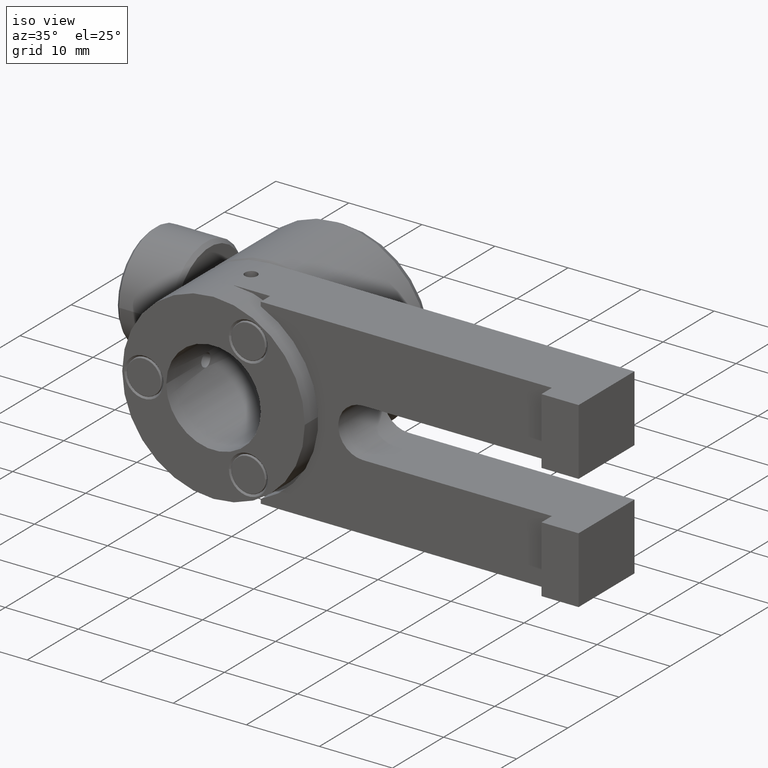
[diagram: clean part render]
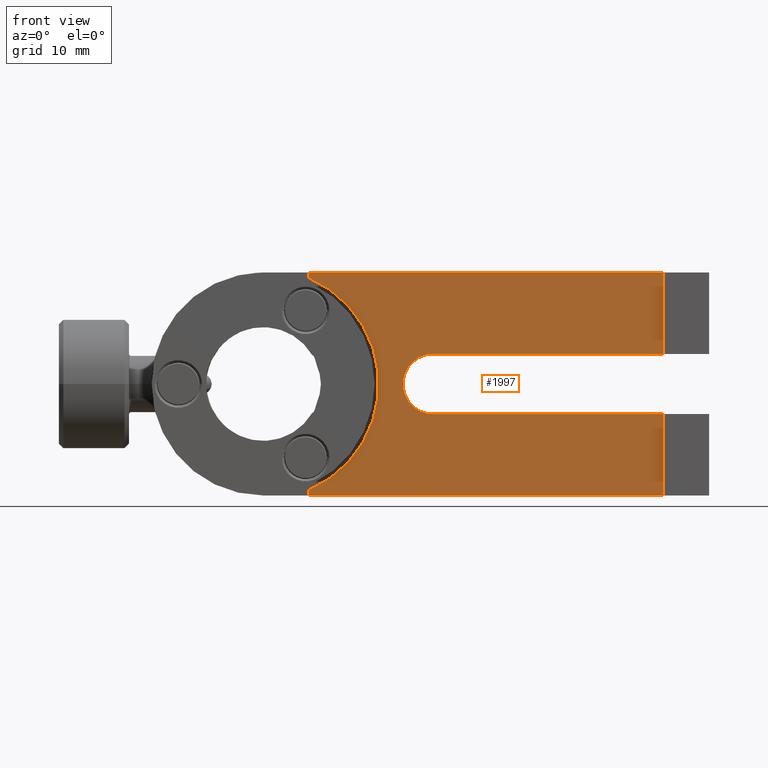
[diagram: tour spotlight — one face highlighted and labeled with its STEP entity id]
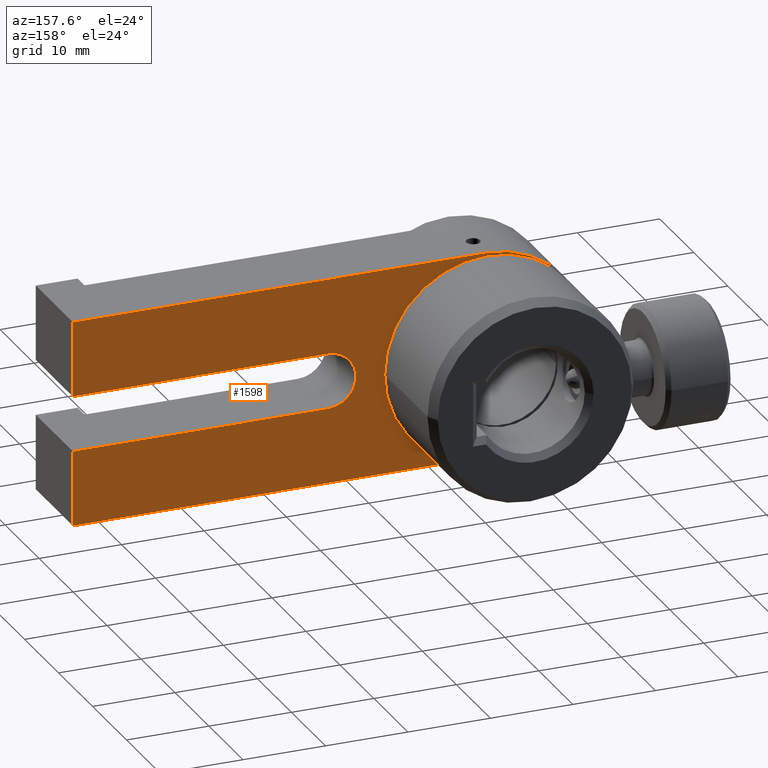
[diagram: tour spotlight — one face highlighted and labeled with its STEP entity id]
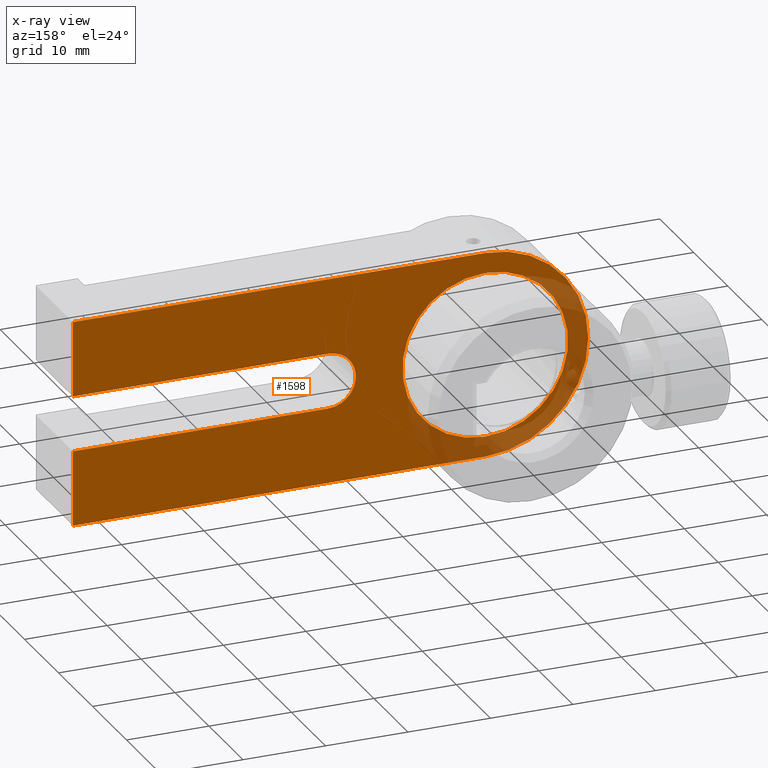
[diagram: x-ray of the same camera — body ghosted, this tour face saturated]
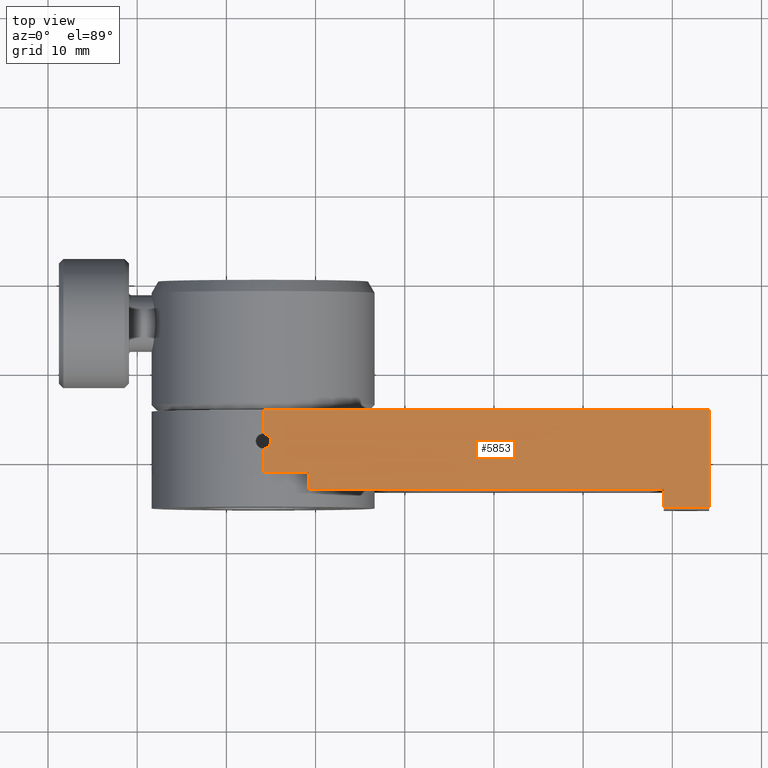
[diagram: tour spotlight — one face highlighted and labeled with its STEP entity id]
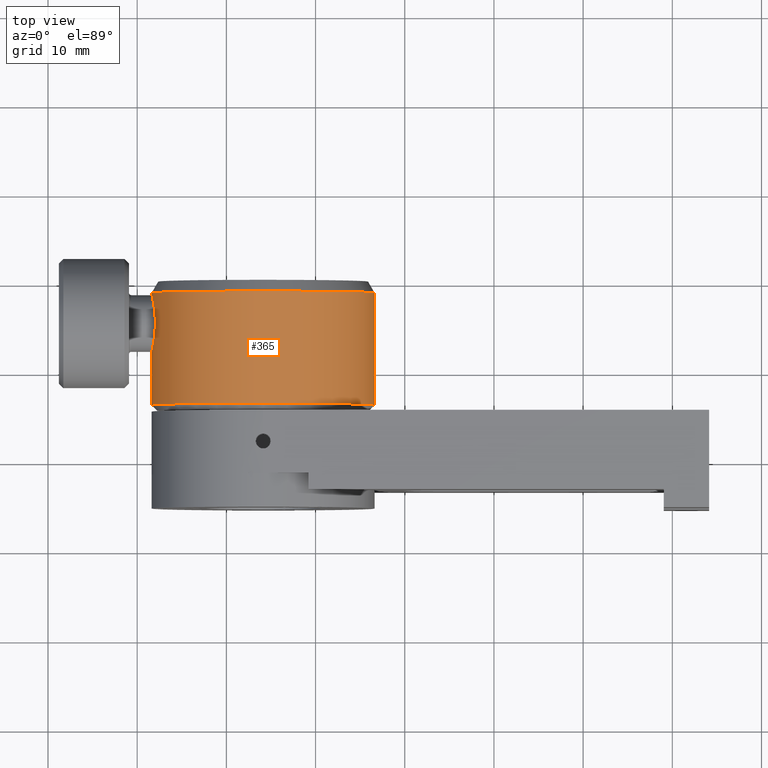
[diagram: tour spotlight — one face highlighted and labeled with its STEP entity id]
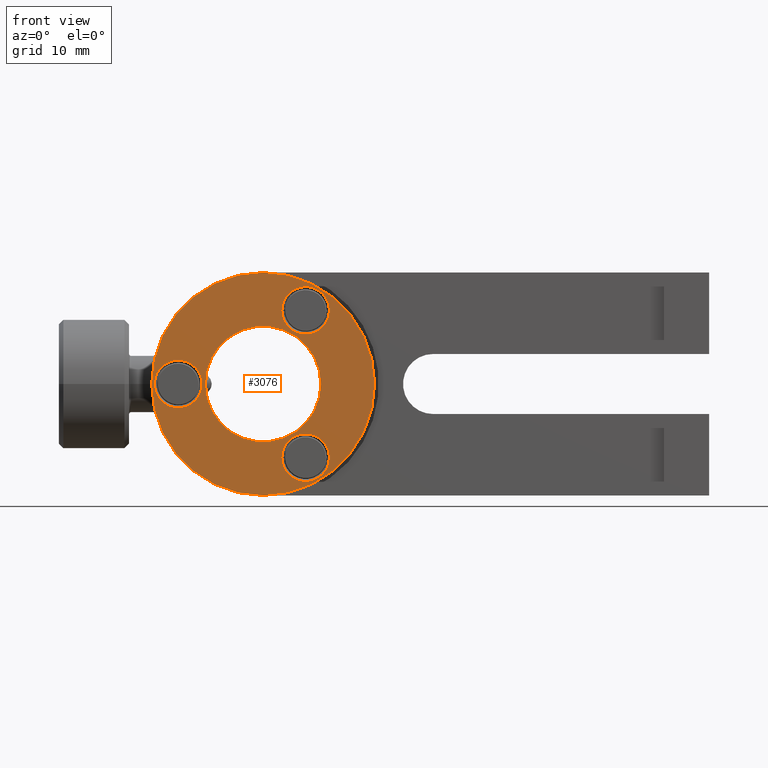
[diagram: tour spotlight — one face highlighted and labeled with its STEP entity id]
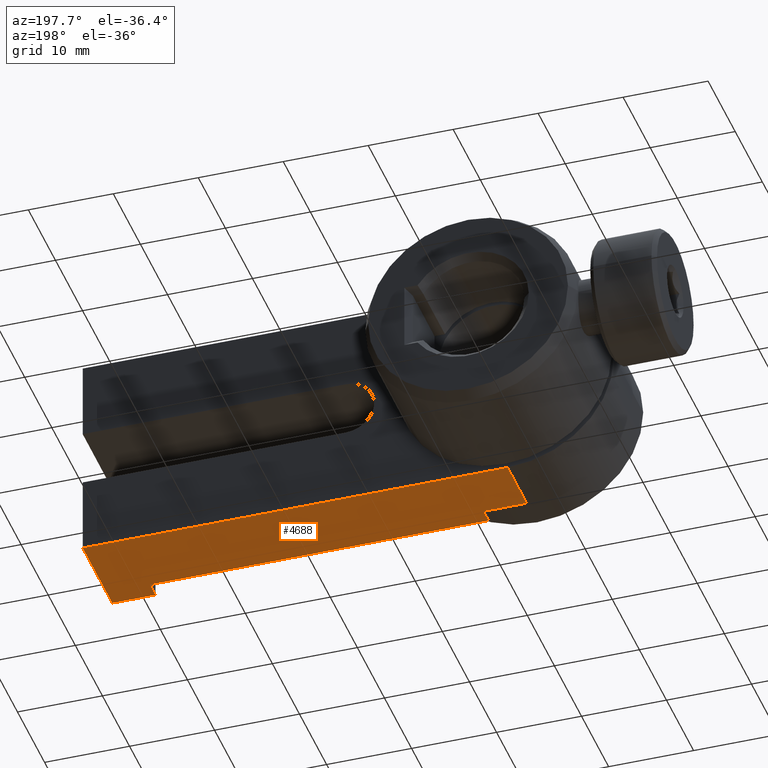
[diagram: tour spotlight — one face highlighted and labeled with its STEP entity id]
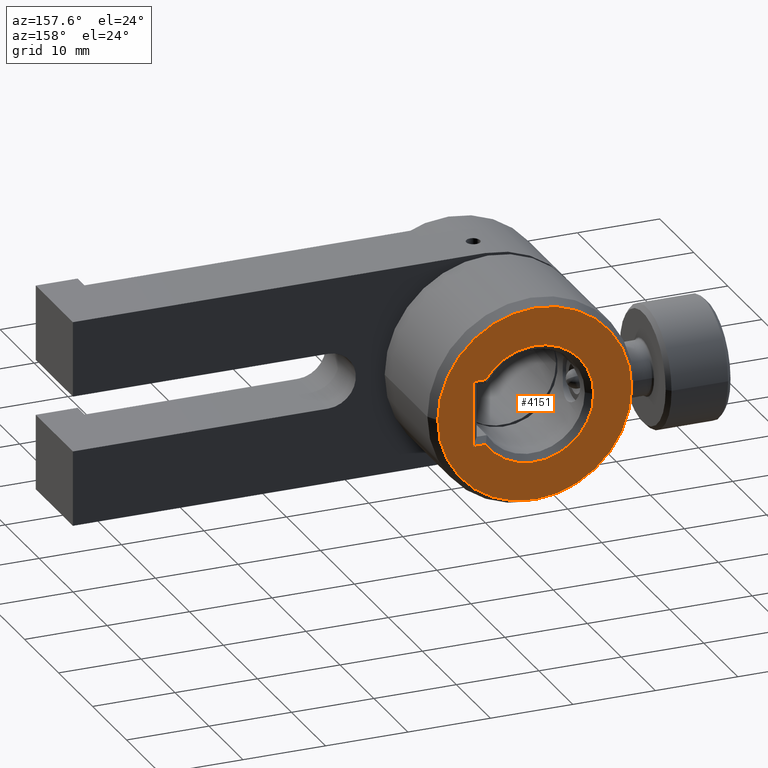
[diagram: tour spotlight — one face highlighted and labeled with its STEP entity id]
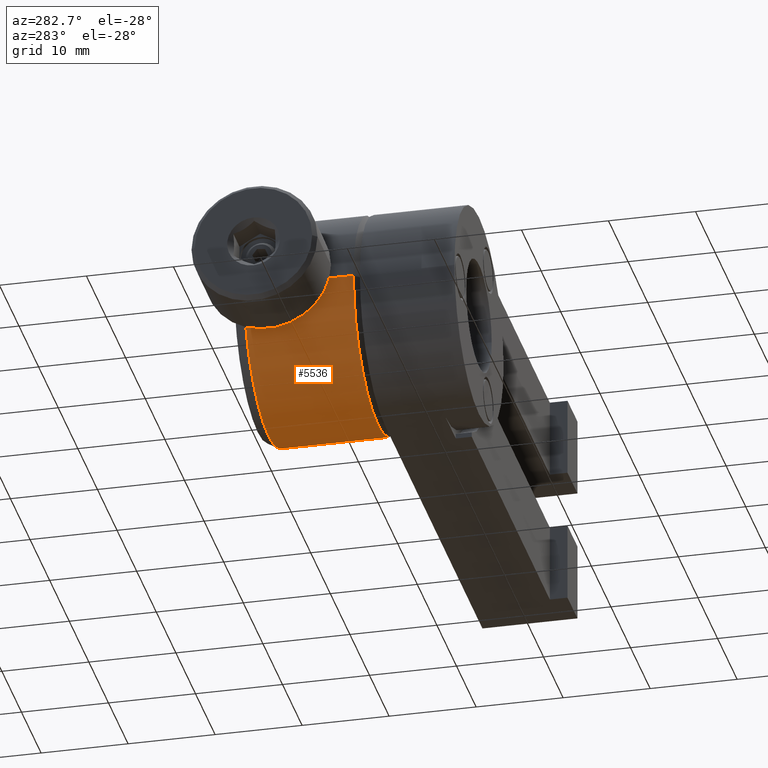
[diagram: tour spotlight — one face highlighted and labeled with its STEP entity id]
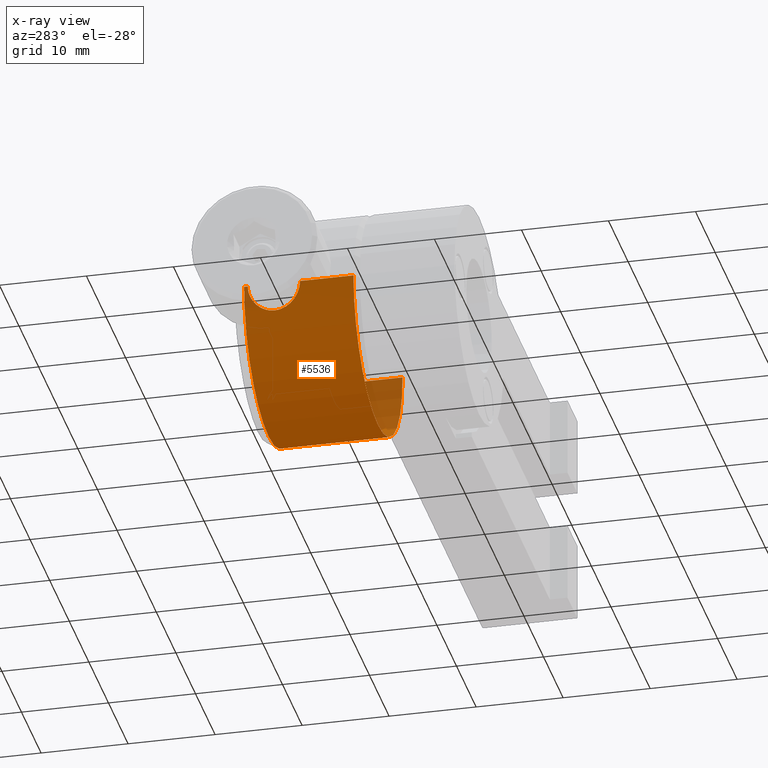
[diagram: x-ray of the same camera — body ghosted, this tour face saturated]
A machine part: a face-by-face anatomy tour. The part has 205 B-rep faces; the first image is the clean iso view, then the 8 largest visible faces are spotlighted one at a time (largest first), each with its STEP entity span.

Face 1 — front view, entity #1997. In plain terms, the highlighted planar face has unit normal (0, 1, -0).
Definition (entity closure, byte-faithful):
#308 = EDGE_LOOP ( 'NONE', ( #2361, #5906, #4393, #2369, #4480, #1803, #4075, #2357, #5941, #1552 ) ) ;
#401 = EDGE_CURVE ( 'NONE', #2819, #846, #3826, .T. ) ;
#426 = CARTESIAN_POINT ( 'NONE',  ( 49.04306664389137900, -3.191865212235105400, 8.999471541716452500E-015 ) ) ;
#534 = CARTESIAN_POINT ( 'NONE',  ( -29.62103515794081700, -3.191865212235105400, 12.49679999999999900 ) ) ;
#674 = VERTEX_POINT ( 'NONE', #1391 ) ;
#739 = LINE ( 'NONE', #2308, #3029 ) ;
#770 = CARTESIAN_POINT ( 'NONE',  ( 23.17306664389138500, -3.191865212235105400, 0.0000000000000000000 ) ) ;
#846 = VERTEX_POINT ( 'NONE', #2916 ) ;
#868 = VERTEX_POINT ( 'NONE', #5783 ) ;
#1128 = DIRECTION ( 'NONE',  ( 1.000000000000000000, 0.0000000000000000000, 0.0000000000000000000 ) ) ;
#1360 = VECTOR ( 'NONE', #3296, 1000.000000000000000 ) ;
#1391 = CARTESIAN_POINT ( 'NONE',  ( 49.04306664389137900, -3.191865212235105400, -12.49679999999999900 ) ) ;
#1439 = VECTOR ( 'NONE', #6614, 1000.000000000000000 ) ;
#1552 = ORIENTED_EDGE ( 'NONE', *, *, #4498, .F. ) ;
#1666 = PLANE ( 'NONE',  #2677 ) ;
#1708 = DIRECTION ( 'NONE',  ( 0.0000000000000000000, 1.000000000000000000, -0.0000000000000000000 ) ) ;
#1780 = DIRECTION ( 'NONE',  ( 0.0000000000000000000, 0.0000000000000000000, 1.000000000000000000 ) ) ;
#1803 = ORIENTED_EDGE ( 'NONE', *, *, #5151, .T. ) ;
#1916 = VERTEX_POINT ( 'NONE', #2667 ) ;
#1997 = ADVANCED_FACE ( 'NONE', ( #3980 ), #1666, .F. ) ;
#2308 = CARTESIAN_POINT ( 'NONE',  ( 9.203066643891327600, -3.191865212235105400, -6.262721656412349900E-014 ) ) ;
#2357 = ORIENTED_EDGE ( 'NONE', *, *, #5096, .T. ) ;
#2361 = ORIENTED_EDGE ( 'NONE', *, *, #401, .T. ) ;
#2364 = LINE ( 'NONE', #534, #3168 ) ;
#2369 = ORIENTED_EDGE ( 'NONE', *, *, #5521, .T. ) ;
#2434 = DIRECTION ( 'NONE',  ( 0.0000000000000000000, 1.000000000000000000, -0.0000000000000000000 ) ) ;
#2490 = EDGE_CURVE ( 'NONE', #1916, #868, #4742, .T. ) ;
#2600 = CARTESIAN_POINT ( 'NONE',  ( -29.62103515794081700, -3.191865212235105400, -3.365499999999993700 ) ) ;
#2667 = CARTESIAN_POINT ( 'NONE',  ( 49.04306664389137900, -3.191865212235105400, -3.365500000000003500 ) ) ;
#2675 = LINE ( 'NONE', #6891, #5526 ) ;
#2677 = AXIS2_PLACEMENT_3D ( 'NONE', #4492, #1708, #5582 ) ;
#2819 = VERTEX_POINT ( 'NONE', #3943 ) ;
#2916 = CARTESIAN_POINT ( 'NONE',  ( 9.203066643891375500, -3.191865212235105400, -11.91636337143174300 ) ) ;
#2971 = AXIS2_PLACEMENT_3D ( 'NONE', #770, #2434, #3555 ) ;
#3029 = VECTOR ( 'NONE', #6858, 1000.000000000000000 ) ;
#3168 = VECTOR ( 'NONE', #1128, 1000.000000000000000 ) ;
#3178 = VECTOR ( 'NONE', #6495, 1000.000000000000000 ) ;
#3234 = VECTOR ( 'NONE', #3754, 1000.000000000000000 ) ;
#3245 = CARTESIAN_POINT ( 'NONE',  ( 4.123066643891380800, -3.191865212235105400, 0.0000000000000000000 ) ) ;
#3282 = CARTESIAN_POINT ( 'NONE',  ( 9.203066643891416400, -3.191865212235105400, -4.175147770941540900E-014 ) ) ;
#3296 = DIRECTION ( 'NONE',  ( 0.0000000000000000000, 0.0000000000000000000, 1.000000000000000000 ) ) ;
#3357 = CARTESIAN_POINT ( 'NONE',  ( 9.203066643891382600, -3.191865212235105400, -12.49679999999999900 ) ) ;
#3555 = DIRECTION ( 'NONE',  ( 0.0000000000000000000, 0.0000000000000000000, 1.000000000000000000 ) ) ;
#3635 = VERTEX_POINT ( 'NONE', #3357 ) ;
#3754 = DIRECTION ( 'NONE',  ( -1.000000000000000000, 0.0000000000000000000, 1.261107535039681900E-016 ) ) ;
#3801 = LINE ( 'NONE', #5469, #3178 ) ;
#3826 = CIRCLE ( 'NONE', #5709, 12.95400000000000100 ) ;
#3943 = CARTESIAN_POINT ( 'NONE',  ( 9.203066643891380800, -3.191865212235105400, 11.91636337143173900 ) ) ;
#3980 = FACE_OUTER_BOUND ( 'NONE', #308, .T. ) ;
#4013 = VERTEX_POINT ( 'NONE', #6158 ) ;
#4075 = ORIENTED_EDGE ( 'NONE', *, *, #6413, .F. ) ;
#4175 = CIRCLE ( 'NONE', #2971, 3.365500000000003000 ) ;
#4383 = VERTEX_POINT ( 'NONE', #6637 ) ;
#4393 = ORIENTED_EDGE ( 'NONE', *, *, #4456, .T. ) ;
#4456 = EDGE_CURVE ( 'NONE', #3635, #674, #6162, .T. ) ;
#4480 = ORIENTED_EDGE ( 'NONE', *, *, #2490, .T. ) ;
#4492 = CARTESIAN_POINT ( 'NONE',  ( 23.17306664389138500, -3.191865212235105400, 0.0000000000000000000 ) ) ;
#4498 = EDGE_CURVE ( 'NONE', #2819, #4013, #6774, .T. ) ;
#4625 = VECTOR ( 'NONE', #6037, 1000.000000000000000 ) ;
#4742 = LINE ( 'NONE', #2600, #3234 ) ;
#5096 = EDGE_CURVE ( 'NONE', #4383, #5173, #2675, .T. ) ;
#5151 = EDGE_CURVE ( 'NONE', #868, #5581, #4175, .T. ) ;
#5173 = VERTEX_POINT ( 'NONE', #5680 ) ;
#5464 = DIRECTION ( 'NONE',  ( 0.0000000000000000000, 1.000000000000000000, -0.0000000000000000000 ) ) ;
#5469 = CARTESIAN_POINT ( 'NONE',  ( -29.62103515794081700, -3.191865212235105400, 3.365500000000010200 ) ) ;
#5509 = CARTESIAN_POINT ( 'NONE',  ( -29.62103515794081700, -3.191865212235105400, -12.49679999999999900 ) ) ;
#5521 = EDGE_CURVE ( 'NONE', #674, #1916, #6070, .T. ) ;
#5526 = VECTOR ( 'NONE', #1780, 1000.000000000000000 ) ;
#5581 = VERTEX_POINT ( 'NONE', #6185 ) ;
#5582 = DIRECTION ( 'NONE',  ( 0.0000000000000000000, 0.0000000000000000000, 1.000000000000000000 ) ) ;
#5680 = CARTESIAN_POINT ( 'NONE',  ( 49.04306664389137900, -3.191865212235105400, 12.49679999999999900 ) ) ;
#5709 = AXIS2_PLACEMENT_3D ( 'NONE', #3245, #5464, #6623 ) ;
#5783 = CARTESIAN_POINT ( 'NONE',  ( 23.17306664389137800, -3.191865212235105400, -3.365500000000003000 ) ) ;
#5837 = EDGE_CURVE ( 'NONE', #3635, #846, #739, .T. ) ;
#5906 = ORIENTED_EDGE ( 'NONE', *, *, #5837, .F. ) ;
#5941 = ORIENTED_EDGE ( 'NONE', *, *, #6815, .F. ) ;
#6037 = DIRECTION ( 'NONE',  ( 1.000000000000000000, 0.0000000000000000000, 0.0000000000000000000 ) ) ;
#6070 = LINE ( 'NONE', #426, #1360 ) ;
#6158 = CARTESIAN_POINT ( 'NONE',  ( 9.203066643891379100, -3.191865212235105400, 12.49679999999999900 ) ) ;
#6162 = LINE ( 'NONE', #5509, #4625 ) ;
#6185 = CARTESIAN_POINT ( 'NONE',  ( 23.17306664389137800, -3.191865212235105400, 3.365500000000006200 ) ) ;
#6413 = EDGE_CURVE ( 'NONE', #4383, #5581, #3801, .T. ) ;
#6495 = DIRECTION ( 'NONE',  ( -1.000000000000000000, 0.0000000000000000000, 7.006152972442677000E-017 ) ) ;
#6614 = DIRECTION ( 'NONE',  ( -2.988652663522942800E-015, 0.0000000000000000000, 1.000000000000000000 ) ) ;
#6623 = DIRECTION ( 'NONE',  ( 0.0000000000000000000, 0.0000000000000000000, 1.000000000000000000 ) ) ;
#6637 = CARTESIAN_POINT ( 'NONE',  ( 49.04306664389137900, -3.191865212235105400, 3.365500000000004400 ) ) ;
#6774 = LINE ( 'NONE', #3282, #1439 ) ;
#6815 = EDGE_CURVE ( 'NONE', #4013, #5173, #2364, .T. ) ;
#6858 = DIRECTION ( 'NONE',  ( -4.482978995284413100E-015, 0.0000000000000000000, 1.000000000000000000 ) ) ;
#6891 = CARTESIAN_POINT ( 'NONE',  ( 49.04306664389137900, -3.191865212235105400, 8.999471541716452500E-015 ) ) ;

Face 2 — auxiliary view, entity #1598. An x-ray twin of the same camera follows (body ghosted, this face saturated) — the face is partly hidden behind the body. In plain terms, the highlighted planar face has unit normal (0, 1, -0).
Definition (entity closure, byte-faithful):
#18 = EDGE_CURVE ( 'NONE', #4593, #6351, #2753, .T. ) ;
#68 = CARTESIAN_POINT ( 'NONE',  ( 54.12306664389138400, 5.698134787764893800, 12.49679999999999900 ) ) ;
#83 = ORIENTED_EDGE ( 'NONE', *, *, #6156, .F. ) ;
#127 = CARTESIAN_POINT ( 'NONE',  ( 23.17306664389137800, 5.698134787764893800, -3.365499999999999900 ) ) ;
#130 = EDGE_CURVE ( 'NONE', #1235, #1106, #891, .T. ) ;
#266 = FACE_OUTER_BOUND ( 'NONE', #5461, .T. ) ;
#394 = DIRECTION ( 'NONE',  ( 0.0000000000000000000, 0.0000000000000000000, 1.000000000000000000 ) ) ;
#463 = VERTEX_POINT ( 'NONE', #5434 ) ;
#682 = DIRECTION ( 'NONE',  ( -1.000000000000000000, 0.0000000000000000000, 1.261107535039681900E-016 ) ) ;
#820 = LINE ( 'NONE', #5205, #3217 ) ;
#826 = CIRCLE ( 'NONE', #3835, 3.365500000000003000 ) ;
#891 = CIRCLE ( 'NONE', #6564, 12.49679999999999900 ) ;
#993 = CARTESIAN_POINT ( 'NONE',  ( 4.123066643891380800, 5.698134787764893800, 0.0000000000000000000 ) ) ;
#1106 = VERTEX_POINT ( 'NONE', #6396 ) ;
#1235 = VERTEX_POINT ( 'NONE', #3770 ) ;
#1470 = CARTESIAN_POINT ( 'NONE',  ( -29.62103515794081700, 5.698134787764893800, -12.49679999999999900 ) ) ;
#1545 = AXIS2_PLACEMENT_3D ( 'NONE', #5198, #3486, #6862 ) ;
#1558 = DIRECTION ( 'NONE',  ( 0.0000000000000000000, 1.000000000000000000, -0.0000000000000000000 ) ) ;
#1598 = ADVANCED_FACE ( 'NONE', ( #266, #1610 ), #2908, .T. ) ;
#1610 = FACE_BOUND ( 'NONE', #5212, .T. ) ;
#1625 = VECTOR ( 'NONE', #7126, 1000.000000000000000 ) ;
#1751 = ORIENTED_EDGE ( 'NONE', *, *, #3546, .T. ) ;
#2036 = CARTESIAN_POINT ( 'NONE',  ( 54.12306664389138400, 5.698134787764893800, 8.999471541716452500E-015 ) ) ;
#2043 = ORIENTED_EDGE ( 'NONE', *, *, #4743, .T. ) ;
#2113 = DIRECTION ( 'NONE',  ( 0.0000000000000000000, 1.000000000000000000, -0.0000000000000000000 ) ) ;
#2273 = ORIENTED_EDGE ( 'NONE', *, *, #4303, .F. ) ;
#2478 = CARTESIAN_POINT ( 'NONE',  ( 4.123066643891380800, 5.698134787764893800, -10.04570000000000200 ) ) ;
#2634 = CIRCLE ( 'NONE', #2893, 10.04570000000000200 ) ;
#2730 = VERTEX_POINT ( 'NONE', #4877 ) ;
#2737 = CARTESIAN_POINT ( 'NONE',  ( 4.123066643891380800, 5.698134787764893800, 0.0000000000000000000 ) ) ;
#2753 = CIRCLE ( 'NONE', #3648, 10.04570000000000200 ) ;
#2893 = AXIS2_PLACEMENT_3D ( 'NONE', #993, #1558, #5520 ) ;
#2908 = PLANE ( 'NONE',  #1545 ) ;
#3044 = ORIENTED_EDGE ( 'NONE', *, *, #3477, .T. ) ;
#3081 = VERTEX_POINT ( 'NONE', #127 ) ;
#3213 = DIRECTION ( 'NONE',  ( 0.0000000000000000000, 0.0000000000000000000, 1.000000000000000000 ) ) ;
#3217 = VECTOR ( 'NONE', #682, 1000.000000000000000 ) ;
#3242 = DIRECTION ( 'NONE',  ( 0.0000000000000000000, 1.000000000000000000, -0.0000000000000000000 ) ) ;
#3257 = DIRECTION ( 'NONE',  ( 0.0000000000000000000, 0.0000000000000000000, -1.000000000000000000 ) ) ;
#3391 = ORIENTED_EDGE ( 'NONE', *, *, #7251, .F. ) ;
#3477 = EDGE_CURVE ( 'NONE', #1106, #6657, #6694, .T. ) ;
#3486 = DIRECTION ( 'NONE',  ( 0.0000000000000000000, 1.000000000000000000, -0.0000000000000000000 ) ) ;
#3546 = EDGE_CURVE ( 'NONE', #4289, #4976, #5164, .T. ) ;
#3641 = VECTOR ( 'NONE', #4811, 1000.000000000000000 ) ;
#3648 = AXIS2_PLACEMENT_3D ( 'NONE', #4549, #3242, #6676 ) ;
#3689 = CARTESIAN_POINT ( 'NONE',  ( 54.12306664389138400, 5.698134787764893800, 8.999471541716452500E-015 ) ) ;
#3770 = CARTESIAN_POINT ( 'NONE',  ( 4.123066643891380800, 5.698134787764893800, -12.49679999999999900 ) ) ;
#3835 = AXIS2_PLACEMENT_3D ( 'NONE', #5009, #7165, #3213 ) ;
#4082 = LINE ( 'NONE', #1470, #3641 ) ;
#4165 = LINE ( 'NONE', #3689, #5082 ) ;
#4289 = VERTEX_POINT ( 'NONE', #6554 ) ;
#4303 = EDGE_CURVE ( 'NONE', #1235, #463, #4082, .T. ) ;
#4320 = VECTOR ( 'NONE', #394, 1000.000000000000000 ) ;
#4549 = CARTESIAN_POINT ( 'NONE',  ( 4.123066643891380800, 5.698134787764893800, 0.0000000000000000000 ) ) ;
#4593 = VERTEX_POINT ( 'NONE', #5404 ) ;
#4743 = EDGE_CURVE ( 'NONE', #6657, #4289, #4165, .T. ) ;
#4811 = DIRECTION ( 'NONE',  ( 1.000000000000000000, -0.0000000000000000000, 0.0000000000000000000 ) ) ;
#4877 = CARTESIAN_POINT ( 'NONE',  ( 54.12306664389138400, 5.698134787764893800, -3.365500000000003900 ) ) ;
#4899 = ORIENTED_EDGE ( 'NONE', *, *, #130, .T. ) ;
#4940 = CARTESIAN_POINT ( 'NONE',  ( -29.62103515794081700, 5.698134787764893800, 12.49679999999999900 ) ) ;
#4976 = VERTEX_POINT ( 'NONE', #6195 ) ;
#5009 = CARTESIAN_POINT ( 'NONE',  ( 23.17306664389138500, 5.698134787764893800, 0.0000000000000000000 ) ) ;
#5082 = VECTOR ( 'NONE', #3257, 1000.000000000000000 ) ;
#5086 = ORIENTED_EDGE ( 'NONE', *, *, #7143, .F. ) ;
#5101 = ORIENTED_EDGE ( 'NONE', *, *, #5420, .F. ) ;
#5164 = LINE ( 'NONE', #7158, #1625 ) ;
#5198 = CARTESIAN_POINT ( 'NONE',  ( -29.62103515794081700, 5.698134787764893800, 8.999471541716452500E-015 ) ) ;
#5205 = CARTESIAN_POINT ( 'NONE',  ( -29.62103515794081700, 5.698134787764893800, -3.365499999999993700 ) ) ;
#5212 = EDGE_LOOP ( 'NONE', ( #3391, #6867 ) ) ;
#5404 = CARTESIAN_POINT ( 'NONE',  ( 4.123066643891381700, 5.698134787764893800, 10.04570000000000200 ) ) ;
#5420 = EDGE_CURVE ( 'NONE', #3081, #4976, #826, .T. ) ;
#5434 = CARTESIAN_POINT ( 'NONE',  ( 54.12306664389138400, 5.698134787764893800, -12.49679999999999900 ) ) ;
#5461 = EDGE_LOOP ( 'NONE', ( #3044, #2043, #1751, #5101, #83, #5086, #2273, #4899 ) ) ;
#5512 = DIRECTION ( 'NONE',  ( 1.000000000000000000, -0.0000000000000000000, 0.0000000000000000000 ) ) ;
#5520 = DIRECTION ( 'NONE',  ( 0.0000000000000000000, 0.0000000000000000000, 1.000000000000000000 ) ) ;
#5666 = LINE ( 'NONE', #2036, #4320 ) ;
#6156 = EDGE_CURVE ( 'NONE', #2730, #3081, #820, .T. ) ;
#6161 = VECTOR ( 'NONE', #5512, 1000.000000000000000 ) ;
#6195 = CARTESIAN_POINT ( 'NONE',  ( 23.17306664389137800, 5.698134787764893800, 3.365500000000006200 ) ) ;
#6351 = VERTEX_POINT ( 'NONE', #2478 ) ;
#6396 = CARTESIAN_POINT ( 'NONE',  ( 4.123066643891380800, 5.698134787764893800, 12.49679999999999900 ) ) ;
#6554 = CARTESIAN_POINT ( 'NONE',  ( 54.12306664389138400, 5.698134787764893800, 3.365500000000003900 ) ) ;
#6564 = AXIS2_PLACEMENT_3D ( 'NONE', #2737, #2113, #6729 ) ;
#6657 = VERTEX_POINT ( 'NONE', #68 ) ;
#6676 = DIRECTION ( 'NONE',  ( 0.0000000000000000000, 0.0000000000000000000, 1.000000000000000000 ) ) ;
#6694 = LINE ( 'NONE', #4940, #6161 ) ;
#6729 = DIRECTION ( 'NONE',  ( 0.0000000000000000000, 0.0000000000000000000, 1.000000000000000000 ) ) ;
#6862 = DIRECTION ( 'NONE',  ( 0.0000000000000000000, 0.0000000000000000000, 1.000000000000000000 ) ) ;
#6867 = ORIENTED_EDGE ( 'NONE', *, *, #18, .F. ) ;
#7126 = DIRECTION ( 'NONE',  ( -1.000000000000000000, 0.0000000000000000000, 7.006152972442677000E-017 ) ) ;
#7143 = EDGE_CURVE ( 'NONE', #463, #2730, #5666, .T. ) ;
#7158 = CARTESIAN_POINT ( 'NONE',  ( -29.62103515794081700, 5.698134787764893800, 3.365500000000010200 ) ) ;
#7165 = DIRECTION ( 'NONE',  ( 0.0000000000000000000, 1.000000000000000000, -0.0000000000000000000 ) ) ;
#7251 = EDGE_CURVE ( 'NONE', #6351, #4593, #2634, .T. ) ;

Face 3 — top view, entity #5853. In plain terms, the highlighted planar face has unit normal (0, 0, -1).
Definition (entity closure, byte-faithful):
#68 = CARTESIAN_POINT ( 'NONE',  ( 54.12306664389138400, 5.698134787764893800, 12.49679999999999900 ) ) ;
#289 = VECTOR ( 'NONE', #6834, 1000.000000000000000 ) ;
#340 = VERTEX_POINT ( 'NONE', #6649 ) ;
#357 = CARTESIAN_POINT ( 'NONE',  ( 23.17306664389138500, -1.363065212235106600, 12.49679999999999900 ) ) ;
#360 = LINE ( 'NONE', #4074, #5068 ) ;
#534 = CARTESIAN_POINT ( 'NONE',  ( -29.62103515794081700, -3.191865212235105400, 12.49679999999999900 ) ) ;
#537 = VERTEX_POINT ( 'NONE', #4408 ) ;
#756 = LINE ( 'NONE', #357, #4910 ) ;
#915 = EDGE_CURVE ( 'NONE', #1606, #4013, #360, .T. ) ;
#1054 = AXIS2_PLACEMENT_3D ( 'NONE', #4156, #4113, #3638 ) ;
#1087 = EDGE_CURVE ( 'NONE', #1299, #5784, #4444, .T. ) ;
#1106 = VERTEX_POINT ( 'NONE', #6396 ) ;
#1128 = DIRECTION ( 'NONE',  ( 1.000000000000000000, 0.0000000000000000000, 0.0000000000000000000 ) ) ;
#1153 = ORIENTED_EDGE ( 'NONE', *, *, #3477, .F. ) ;
#1299 = VERTEX_POINT ( 'NONE', #3088 ) ;
#1310 = ORIENTED_EDGE ( 'NONE', *, *, #3074, .F. ) ;
#1543 = VECTOR ( 'NONE', #5915, 1000.000000000000000 ) ;
#1606 = VERTEX_POINT ( 'NONE', #4015 ) ;
#1840 = ORIENTED_EDGE ( 'NONE', *, *, #2461, .T. ) ;
#1919 = AXIS2_PLACEMENT_3D ( 'NONE', #5677, #4655, #5774 ) ;
#1964 = LINE ( 'NONE', #5779, #2317 ) ;
#2023 = EDGE_CURVE ( 'NONE', #5158, #1299, #4059, .T. ) ;
#2152 = VECTOR ( 'NONE', #2342, 1000.000000000000000 ) ;
#2263 = EDGE_CURVE ( 'NONE', #1106, #5784, #5982, .T. ) ;
#2317 = VECTOR ( 'NONE', #5805, 1000.000000000000000 ) ;
#2319 = DIRECTION ( 'NONE',  ( 0.0000000000000000000, -1.000000000000000000, 0.0000000000000000000 ) ) ;
#2342 = DIRECTION ( 'NONE',  ( -0.0000000000000000000, -1.000000000000000000, -0.0000000000000000000 ) ) ;
#2364 = LINE ( 'NONE', #534, #3168 ) ;
#2405 = DIRECTION ( 'NONE',  ( -0.0000000000000000000, -1.000000000000000000, -0.0000000000000000000 ) ) ;
#2461 = EDGE_CURVE ( 'NONE', #537, #1606, #756, .T. ) ;
#2489 = CARTESIAN_POINT ( 'NONE',  ( 4.123066643891380800, 5.698134787764893800, 12.49679999999999900 ) ) ;
#2496 = CARTESIAN_POINT ( 'NONE',  ( 4.123066643891380800, 5.698134787764893800, 12.49679999999999900 ) ) ;
#2510 = EDGE_CURVE ( 'NONE', #340, #4858, #3411, .T. ) ;
#2892 = CARTESIAN_POINT ( 'NONE',  ( 54.12306664389138400, 5.698134787764893800, 12.49679999999999900 ) ) ;
#2959 = ORIENTED_EDGE ( 'NONE', *, *, #6815, .T. ) ;
#3074 = EDGE_CURVE ( 'NONE', #6657, #4858, #4087, .T. ) ;
#3079 = DIRECTION ( 'NONE',  ( -0.0000000000000000000, -0.0000000000000000000, 1.000000000000000000 ) ) ;
#3088 = CARTESIAN_POINT ( 'NONE',  ( 4.973966643891380100, 2.167534787764893600, 12.49679999999999900 ) ) ;
#3102 = DIRECTION ( 'NONE',  ( 1.000000000000000000, 0.0000000000000000000, 0.0000000000000000000 ) ) ;
#3168 = VECTOR ( 'NONE', #1128, 1000.000000000000000 ) ;
#3411 = LINE ( 'NONE', #4279, #1543 ) ;
#3477 = EDGE_CURVE ( 'NONE', #1106, #6657, #6694, .T. ) ;
#3638 = DIRECTION ( 'NONE',  ( -1.000000000000000000, 0.0000000000000000000, -0.0000000000000000000 ) ) ;
#3691 = CARTESIAN_POINT ( 'NONE',  ( 4.123066643891379900, 2.167534787764893600, 12.49679999999999900 ) ) ;
#3927 = LINE ( 'NONE', #2489, #289 ) ;
#3954 = ORIENTED_EDGE ( 'NONE', *, *, #2023, .F. ) ;
#3957 = CARTESIAN_POINT ( 'NONE',  ( 4.123066643891380800, 1.316634787764893800, 12.49679999999999900 ) ) ;
#4013 = VERTEX_POINT ( 'NONE', #6158 ) ;
#4015 = CARTESIAN_POINT ( 'NONE',  ( 9.203066643891379100, -1.363065212235106600, 12.49679999999999900 ) ) ;
#4059 = CIRCLE ( 'NONE', #1919, 0.8508999999999998800 ) ;
#4074 = CARTESIAN_POINT ( 'NONE',  ( 9.203066643891379100, -1.363065212235106600, 12.49679999999999900 ) ) ;
#4087 = LINE ( 'NONE', #2892, #2152 ) ;
#4102 = ORIENTED_EDGE ( 'NONE', *, *, #2510, .T. ) ;
#4113 = DIRECTION ( 'NONE',  ( 0.0000000000000000000, 0.0000000000000000000, -1.000000000000000000 ) ) ;
#4156 = CARTESIAN_POINT ( 'NONE',  ( -29.62103515794081700, 5.698134787764893800, 12.49679999999999900 ) ) ;
#4279 = CARTESIAN_POINT ( 'NONE',  ( -29.62103515794081700, -5.223865212235105900, 12.49679999999999900 ) ) ;
#4408 = CARTESIAN_POINT ( 'NONE',  ( 4.123066643891380800, -1.363065212235106600, 12.49679999999999900 ) ) ;
#4444 = CIRCLE ( 'NONE', #5833, 0.8508999999999998800 ) ;
#4655 = DIRECTION ( 'NONE',  ( -0.0000000000000000000, -0.0000000000000000000, 1.000000000000000000 ) ) ;
#4858 = VERTEX_POINT ( 'NONE', #7172 ) ;
#4910 = VECTOR ( 'NONE', #5948, 1000.000000000000000 ) ;
#4940 = CARTESIAN_POINT ( 'NONE',  ( -29.62103515794081700, 5.698134787764893800, 12.49679999999999900 ) ) ;
#5068 = VECTOR ( 'NONE', #2319, 1000.000000000000000 ) ;
#5158 = VERTEX_POINT ( 'NONE', #3957 ) ;
#5173 = VERTEX_POINT ( 'NONE', #5680 ) ;
#5196 = EDGE_CURVE ( 'NONE', #5173, #340, #1964, .T. ) ;
#5285 = PLANE ( 'NONE',  #1054 ) ;
#5512 = DIRECTION ( 'NONE',  ( 1.000000000000000000, -0.0000000000000000000, 0.0000000000000000000 ) ) ;
#5531 = EDGE_LOOP ( 'NONE', ( #3954, #6214, #1840, #6881, #2959, #5578, #4102, #1310, #1153, #5580, #7323 ) ) ;
#5540 = VECTOR ( 'NONE', #2405, 1000.000000000000000 ) ;
#5578 = ORIENTED_EDGE ( 'NONE', *, *, #5196, .T. ) ;
#5580 = ORIENTED_EDGE ( 'NONE', *, *, #2263, .T. ) ;
#5677 = CARTESIAN_POINT ( 'NONE',  ( 4.123066643891379900, 2.167534787764893600, 12.49679999999999900 ) ) ;
#5680 = CARTESIAN_POINT ( 'NONE',  ( 49.04306664389137900, -3.191865212235105400, 12.49679999999999900 ) ) ;
#5774 = DIRECTION ( 'NONE',  ( 1.000000000000000000, 0.0000000000000000000, 0.0000000000000000000 ) ) ;
#5779 = CARTESIAN_POINT ( 'NONE',  ( 49.04306664389137900, -3.191865212235105400, 12.49679999999999900 ) ) ;
#5784 = VERTEX_POINT ( 'NONE', #6296 ) ;
#5805 = DIRECTION ( 'NONE',  ( 0.0000000000000000000, -1.000000000000000000, 0.0000000000000000000 ) ) ;
#5833 = AXIS2_PLACEMENT_3D ( 'NONE', #3691, #3079, #3102 ) ;
#5853 = ADVANCED_FACE ( 'NONE', ( #6421 ), #5285, .F. ) ;
#5915 = DIRECTION ( 'NONE',  ( 1.000000000000000000, -0.0000000000000000000, 0.0000000000000000000 ) ) ;
#5948 = DIRECTION ( 'NONE',  ( 1.000000000000000000, 0.0000000000000000000, 0.0000000000000000000 ) ) ;
#5974 = EDGE_CURVE ( 'NONE', #5158, #537, #3927, .T. ) ;
#5982 = LINE ( 'NONE', #2496, #5540 ) ;
#6158 = CARTESIAN_POINT ( 'NONE',  ( 9.203066643891379100, -3.191865212235105400, 12.49679999999999900 ) ) ;
#6161 = VECTOR ( 'NONE', #5512, 1000.000000000000000 ) ;
#6214 = ORIENTED_EDGE ( 'NONE', *, *, #5974, .T. ) ;
#6296 = CARTESIAN_POINT ( 'NONE',  ( 4.123066643891380800, 3.018434787764893800, 12.49679999999999900 ) ) ;
#6396 = CARTESIAN_POINT ( 'NONE',  ( 4.123066643891380800, 5.698134787764893800, 12.49679999999999900 ) ) ;
#6421 = FACE_OUTER_BOUND ( 'NONE', #5531, .T. ) ;
#6649 = CARTESIAN_POINT ( 'NONE',  ( 49.04306664389137900, -5.223865212235105900, 12.49679999999999900 ) ) ;
#6657 = VERTEX_POINT ( 'NONE', #68 ) ;
#6694 = LINE ( 'NONE', #4940, #6161 ) ;
#6815 = EDGE_CURVE ( 'NONE', #4013, #5173, #2364, .T. ) ;
#6834 = DIRECTION ( 'NONE',  ( -0.0000000000000000000, -1.000000000000000000, -0.0000000000000000000 ) ) ;
#6881 = ORIENTED_EDGE ( 'NONE', *, *, #915, .T. ) ;
#7172 = CARTESIAN_POINT ( 'NONE',  ( 54.12306664389138400, -5.223865212235105900, 12.49679999999999900 ) ) ;
#7323 = ORIENTED_EDGE ( 'NONE', *, *, #1087, .F. ) ;

Face 4 — top view, entity #365. In plain terms, the highlighted cylindrical surface (partial cylindrical patch) has radius 12.4968 mm, axis along (-0, -1, -0).
Definition (entity closure, byte-faithful):
#20 = CARTESIAN_POINT ( 'NONE',  ( -7.965020394828437500, 15.18353138422892500, 3.169883608773561800 ) ) ;
#365 = ADVANCED_FACE ( 'NONE', ( #4796 ), #3020, .T. ) ;
#420 = VERTEX_POINT ( 'NONE', #7136 ) ;
#536 = VERTEX_POINT ( 'NONE', #4458 ) ;
#597 = CARTESIAN_POINT ( 'NONE',  ( -8.081205408573204400, 13.98501811947061800, 2.688707204841759500 ) ) ;
#641 = CARTESIAN_POINT ( 'NONE',  ( -8.368541941284503200, 12.58993958144118400, 0.4133182111294141900 ) ) ;
#648 = DIRECTION ( 'NONE',  ( -6.084915702912036800E-017, -1.000000000000000000, -4.682008048750862200E-018 ) ) ;
#964 = EDGE_CURVE ( 'NONE', #7041, #420, #3814, .T. ) ;
#1138 = CARTESIAN_POINT ( 'NONE',  ( -8.272923075707431900, 18.18514020888701700, 1.593512930355851500 ) ) ;
#1160 = CARTESIAN_POINT ( 'NONE',  ( -8.036702562202789200, 14.33121686604088300, 2.883020887556725600 ) ) ;
#1163 = ORIENTED_EDGE ( 'NONE', *, *, #4157, .T. ) ;
#1181 = CARTESIAN_POINT ( 'NONE',  ( -8.144461236026302200, 13.59059747516051100, 2.387497021437793500 ) ) ;
#1613 = ORIENTED_EDGE ( 'NONE', *, *, #964, .F. ) ;
#1719 = EDGE_CURVE ( 'NONE', #536, #420, #1855, .T. ) ;
#1725 = CARTESIAN_POINT ( 'NONE',  ( -8.352960514469351900, 18.50967602466802500, 0.8215367828947258700 ) ) ;
#1748 = CARTESIAN_POINT ( 'NONE',  ( -8.373733356108623100, 20.27773478776488900, -1.866790527404384200E-015 ) ) ;
#1757 = VERTEX_POINT ( 'NONE', #4343 ) ;
#1855 = CIRCLE ( 'NONE', #6009, 12.49680000000000400 ) ;
#1934 = VERTEX_POINT ( 'NONE', #2244 ) ;
#1935 = ORIENTED_EDGE ( 'NONE', *, *, #2058, .T. ) ;
#1993 = AXIS2_PLACEMENT_3D ( 'NONE', #6678, #4946, #4316 ) ;
#2058 = EDGE_CURVE ( 'NONE', #1757, #4245, #3455, .T. ) ;
#2087 = CARTESIAN_POINT ( 'NONE',  ( 4.123066643891380800, 6.434734787764902800, -1.901168728691445700E-015 ) ) ;
#2244 = CARTESIAN_POINT ( 'NONE',  ( -8.373733356108623100, 12.57091345477052300, -1.927218918694828000E-015 ) ) ;
#2259 = CARTESIAN_POINT ( 'NONE',  ( -8.295336141418774300, 18.27724185221812500, 1.411497087227551600 ) ) ;
#2280 = CARTESIAN_POINT ( 'NONE',  ( -8.333656708904563000, 12.72581293698205600, 1.019124609914572800 ) ) ;
#2331 = CARTESIAN_POINT ( 'NONE',  ( -8.007307715601152500, 16.54583646707741500, 3.005161263269492200 ) ) ;
#2449 = CARTESIAN_POINT ( 'NONE',  ( 16.61986664389138500, 20.27773478776488900, -2.755042431823260900E-016 ) ) ;
#2905 = CARTESIAN_POINT ( 'NONE',  ( -8.373733071204693300, 18.58655339421961000, 1.572861519679093600E-012 ) ) ;
#3020 = CYLINDRICAL_SURFACE ( 'NONE', #1993, 12.49680000000000200 ) ;
#3065 = CARTESIAN_POINT ( 'NONE',  ( 16.61986664389138100, 19.00773478776489600, -3.108838370027125700E-016 ) ) ;
#3272 = ORIENTED_EDGE ( 'NONE', *, *, #3681, .T. ) ;
#3393 = EDGE_CURVE ( 'NONE', #7041, #1757, #3558, .T. ) ;
#3401 = EDGE_LOOP ( 'NONE', ( #4660, #1935, #1163, #3272, #5303, #1613 ) ) ;
#3413 = CARTESIAN_POINT ( 'NONE',  ( -7.970569808912876500, 15.97010360136248000, 3.148928143239710900 ) ) ;
#3433 = CARTESIAN_POINT ( 'NONE',  ( -8.197899488209829500, 17.84513307804578400, 2.094284964668438900 ) ) ;
#3455 = LINE ( 'NONE', #1748, #5054 ) ;
#3456 = CARTESIAN_POINT ( 'NONE',  ( -8.224146281508124500, 17.96885024283530200, 1.935504472342587600 ) ) ;
#3558 = CIRCLE ( 'NONE', #4830, 12.49680000000000400 ) ;
#3681 = EDGE_CURVE ( 'NONE', #1934, #536, #5524, .T. ) ;
#3690 = DIRECTION ( 'NONE',  ( -1.000000000000000000, 0.0000000000000000000, -1.249000902703301100E-016 ) ) ;
#3814 = LINE ( 'NONE', #2449, #5503 ) ;
#3971 = CARTESIAN_POINT ( 'NONE',  ( -8.047097750020377300, 14.24274350812416400, 2.838944583504204200 ) ) ;
#3995 = VECTOR ( 'NONE', #5712, 1000.000000000000000 ) ;
#4012 = CARTESIAN_POINT ( 'NONE',  ( -8.118004026724719300, 13.74153124572753800, 2.517889825375032100 ) ) ;
#4035 = CARTESIAN_POINT ( 'NONE',  ( -7.987254669092946500, 14.80021094836068900, 3.088480117032964800 ) ) ;
#4157 = EDGE_CURVE ( 'NONE', #4245, #1934, #5424, .T. ) ;
#4245 = VERTEX_POINT ( 'NONE', #6480 ) ;
#4316 = DIRECTION ( 'NONE',  ( 1.000000000000000000, 0.0000000000000000000, 1.249000902703301100E-016 ) ) ;
#4343 = CARTESIAN_POINT ( 'NONE',  ( -8.373733356108619600, 19.00773478776489600, -1.902170121224769900E-015 ) ) ;
#4371 = DIRECTION ( 'NONE',  ( 6.084915702912036800E-017, 1.000000000000000000, 4.682008048750862200E-018 ) ) ;
#4458 = CARTESIAN_POINT ( 'NONE',  ( -8.373733356108619600, 6.434734787764903700, -1.902170121224769900E-015 ) ) ;
#4576 = CARTESIAN_POINT ( 'NONE',  ( -8.117697970489715000, 17.42726503838626000, 2.534283863698191500 ) ) ;
#4660 = ORIENTED_EDGE ( 'NONE', *, *, #3393, .T. ) ;
#4750 = DIRECTION ( 'NONE',  ( -6.084915702912036800E-017, -1.000000000000000000, -4.682008048750862200E-018 ) ) ;
#4796 = FACE_OUTER_BOUND ( 'NONE', #3401, .T. ) ;
#4830 = AXIS2_PLACEMENT_3D ( 'NONE', #4837, #4914, #3690 ) ;
#4837 = CARTESIAN_POINT ( 'NONE',  ( 4.123066643891380800, 19.00773478776489600, -1.842301841494501000E-015 ) ) ;
#4914 = DIRECTION ( 'NONE',  ( -6.084915702912036800E-017, -1.000000000000000000, -4.682008048750862200E-018 ) ) ;
#4946 = DIRECTION ( 'NONE',  ( -6.084915702912036800E-017, -1.000000000000000000, -4.682008048750862200E-018 ) ) ;
#5054 = VECTOR ( 'NONE', #648, 1000.000000000000000 ) ;
#5115 = CARTESIAN_POINT ( 'NONE',  ( -8.276400853961337800, 12.95702729873912600, 1.605447502784009600 ) ) ;
#5144 = CARTESIAN_POINT ( 'NONE',  ( -8.373733356108626700, 12.57071021922901500, 0.2079649357458931700 ) ) ;
#5303 = ORIENTED_EDGE ( 'NONE', *, *, #1719, .T. ) ;
#5424 = B_SPLINE_CURVE_WITH_KNOTS ( 'NONE', 3,
 ( #2905, #6856, #1725, #2259, #1138, #3456, #3433, #4576, #6811, #2331, #6246, #3413, #6883, #20, #4035, #1160, #3971, #5691, #597, #4012, #1181, #6344, #5115, #2280, #5767, #641, #5144, #6273 ),
 .UNSPECIFIED., .F., .F.,
 ( 4, 2, 2, 2, 2, 2, 2, 2, 2, 2, 2, 2, 2, 4 ),
 ( 0.4998485362696216100, 0.5623674692359186300, 0.5936269357190672200, 0.6248864022022158100, 0.6874053351685129900, 0.7186648016516616900, 0.7499242681348106100, 0.8124432011011086800, 0.8280729343426831400, 0.8437026675842574900, 0.8749621340674059700, 0.9374810670337029300, 0.9687405335168514100, 1.000000000000000000 ),
 .UNSPECIFIED. ) ;
#5503 = VECTOR ( 'NONE', #4750, 1000.000000000000000 ) ;
#5524 = LINE ( 'NONE', #7358, #3995 ) ;
#5691 = CARTESIAN_POINT ( 'NONE',  ( -8.069414074406692400, 14.06902811370040900, 2.741518129973812700 ) ) ;
#5712 = DIRECTION ( 'NONE',  ( -6.084915702912036800E-017, -1.000000000000000000, -4.682008048750862200E-018 ) ) ;
#5767 = CARTESIAN_POINT ( 'NONE',  ( -8.348559826511607400, 12.66726350137286300, 0.8183215576010005600 ) ) ;
#6009 = AXIS2_PLACEMENT_3D ( 'NONE', #2087, #4371, #6071 ) ;
#6071 = DIRECTION ( 'NONE',  ( -1.000000000000000000, 6.940670715610422700E-017, -1.249000902703301100E-016 ) ) ;
#6246 = CARTESIAN_POINT ( 'NONE',  ( -7.991560902986128300, 16.35448993975508700, 3.067179568319995800 ) ) ;
#6273 = CARTESIAN_POINT ( 'NONE',  ( -8.373733356108623100, 12.57091345477052300, -1.927218918694828000E-015 ) ) ;
#6344 = CARTESIAN_POINT ( 'NONE',  ( -8.224904721139166600, 13.17196859924454900, 1.946047711674477400 ) ) ;
#6480 = CARTESIAN_POINT ( 'NONE',  ( -8.373733071204693300, 18.58655339421961000, 1.572861519679093600E-012 ) ) ;
#6678 = CARTESIAN_POINT ( 'NONE',  ( 4.123066643891381700, 20.27773478776488900, -1.836355691272587400E-015 ) ) ;
#6811 = CARTESIAN_POINT ( 'NONE',  ( -8.065894040983630800, 17.10202486867084900, 2.761722647430136000 ) ) ;
#6856 = CARTESIAN_POINT ( 'NONE',  ( -8.373733356105116600, 18.58695334542358800, 0.4166179830036470000 ) ) ;
#6883 = CARTESIAN_POINT ( 'NONE',  ( -7.965145905616926900, 15.77536764068784200, 3.169404932336550300 ) ) ;
#7041 = VERTEX_POINT ( 'NONE', #3065 ) ;
#7136 = CARTESIAN_POINT ( 'NONE',  ( 16.61986664389138100, 6.434734787764901900, -3.108838370027125700E-016 ) ) ;
#7358 = CARTESIAN_POINT ( 'NONE',  ( -8.373733356108623100, 20.27773478776488900, -1.866790527404384200E-015 ) ) ;

Face 5 — front view, entity #3076. In plain terms, the highlighted planar face has unit normal (0, 1, 0).
Definition (entity closure, byte-faithful):
#77 = DIRECTION ( 'NONE',  ( -1.000000000000000000, 0.0000000000000000000, -3.552366734105304900E-014 ) ) ;
#102 = CARTESIAN_POINT ( 'NONE',  ( 27.25954881087196900, -5.173065212235105300, 9.676094679240765700E-013 ) ) ;
#152 = EDGE_CURVE ( 'NONE', #5180, #5435, #5775, .T. ) ;
#201 = VERTEX_POINT ( 'NONE', #2955 ) ;
#232 = DIRECTION ( 'NONE',  ( 0.0000000000000000000, 1.000000000000000000, 0.0000000000000000000 ) ) ;
#339 = ORIENTED_EDGE ( 'NONE', *, *, #4235, .T. ) ;
#429 = DIRECTION ( 'NONE',  ( 0.0000000000000000000, 1.000000000000000000, 0.0000000000000000000 ) ) ;
#453 = CARTESIAN_POINT ( 'NONE',  ( 11.55256664389171400, -5.173065212235105300, -8.248891971046347700 ) ) ;
#552 = CIRCLE ( 'NONE', #6448, 2.666999999999999400 ) ;
#619 = EDGE_LOOP ( 'NONE', ( #4252, #7149 ) ) ;
#656 = CARTESIAN_POINT ( 'NONE',  ( -2.734933356108621500, -5.173065212235105300, -9.790453864289004100E-014 ) ) ;
#684 = DIRECTION ( 'NONE',  ( -1.000000000000000000, 0.0000000000000000000, -3.577419991703202400E-014 ) ) ;
#792 = EDGE_CURVE ( 'NONE', #5435, #5180, #552, .T. ) ;
#1152 = CARTESIAN_POINT ( 'NONE',  ( -2.353933356108619100, -5.173065212235105300, -8.437002138594873400E-014 ) ) ;
#1184 = DIRECTION ( 'NONE',  ( -1.000000000000000000, 0.0000000000000000000, -3.577419991703202400E-014 ) ) ;
#1426 = DIRECTION ( 'NONE',  ( 0.0000000000000000000, 1.000000000000000000, 0.0000000000000000000 ) ) ;
#1584 = EDGE_CURVE ( 'NONE', #6174, #6267, #3100, .T. ) ;
#1663 = AXIS2_PLACEMENT_3D ( 'NONE', #102, #5204, #77 ) ;
#1793 = CARTESIAN_POINT ( 'NONE',  ( -8.373733356108621400, -5.173065212235105300, -2.982153940456199100E-013 ) ) ;
#1815 = ORIENTED_EDGE ( 'NONE', *, *, #4196, .T. ) ;
#1828 = EDGE_CURVE ( 'NONE', #6440, #4117, #6478, .T. ) ;
#1958 = CARTESIAN_POINT ( 'NONE',  ( 8.885566643891005300, -5.173065212235105300, 8.248891971047143600 ) ) ;
#2015 = CARTESIAN_POINT ( 'NONE',  ( 16.61986664389138100, -5.173065212235105300, 5.911793546216819800E-013 ) ) ;
#2175 = AXIS2_PLACEMENT_3D ( 'NONE', #4132, #232, #4182 ) ;
#2196 = ORIENTED_EDGE ( 'NONE', *, *, #792, .T. ) ;
#2350 = CARTESIAN_POINT ( 'NONE',  ( 8.885566643891714000, -5.173065212235105300, -8.248891971046440100 ) ) ;
#2419 = DIRECTION ( 'NONE',  ( 0.0000000000000000000, 1.000000000000000000, 0.0000000000000000000 ) ) ;
#2514 = DIRECTION ( 'NONE',  ( -1.000000000000000000, 0.0000000000000000000, -3.577419991703202400E-014 ) ) ;
#2734 = EDGE_LOOP ( 'NONE', ( #4931, #3430 ) ) ;
#2864 = VERTEX_POINT ( 'NONE', #1152 ) ;
#2955 = CARTESIAN_POINT ( 'NONE',  ( 6.218566643891006300, -5.173065212235105300, 8.248891971047049400 ) ) ;
#3028 = FACE_BOUND ( 'NONE', #3859, .T. ) ;
#3076 = ADVANCED_FACE ( 'NONE', ( #3028, #4719, #7312, #4633, #6504 ), #6874, .F. ) ;
#3100 = CIRCLE ( 'NONE', #4819, 2.667000000000001100 ) ;
#3229 = AXIS2_PLACEMENT_3D ( 'NONE', #6897, #2419, #6410 ) ;
#3392 = DIRECTION ( 'NONE',  ( 0.0000000000000000000, 1.000000000000000000, 0.0000000000000000000 ) ) ;
#3430 = ORIENTED_EDGE ( 'NONE', *, *, #4610, .T. ) ;
#3459 = DIRECTION ( 'NONE',  ( 0.0000000000000000000, 1.000000000000000000, 0.0000000000000000000 ) ) ;
#3666 = DIRECTION ( 'NONE',  ( 0.0000000000000000000, 1.000000000000000000, 0.0000000000000000000 ) ) ;
#3714 = CARTESIAN_POINT ( 'NONE',  ( -5.401933356108623100, -5.173065212235105300, -1.926461594414785800E-013 ) ) ;
#3834 = CIRCLE ( 'NONE', #4879, 6.477000000000000300 ) ;
#3859 = EDGE_LOOP ( 'NONE', ( #2196, #5214 ) ) ;
#3877 = EDGE_CURVE ( 'NONE', #201, #6663, #7246, .T. ) ;
#3897 = EDGE_LOOP ( 'NONE', ( #5869, #5988 ) ) ;
#4040 = CARTESIAN_POINT ( 'NONE',  ( 11.55256664389100500, -5.173065212235105300, 8.248891971047237700 ) ) ;
#4050 = CARTESIAN_POINT ( 'NONE',  ( 8.885566643891714000, -5.173065212235105300, -8.248891971046440100 ) ) ;
#4117 = VERTEX_POINT ( 'NONE', #1793 ) ;
#4132 = CARTESIAN_POINT ( 'NONE',  ( 4.123066643891380800, -5.173065212235105300, 1.457167719820518700E-013 ) ) ;
#4182 = DIRECTION ( 'NONE',  ( -1.000000000000000000, 0.0000000000000000000, -3.552366734105304300E-014 ) ) ;
#4196 = EDGE_CURVE ( 'NONE', #2864, #6459, #6559, .T. ) ;
#4235 = EDGE_CURVE ( 'NONE', #6459, #2864, #3834, .T. ) ;
#4252 = ORIENTED_EDGE ( 'NONE', *, *, #5921, .F. ) ;
#4298 = CARTESIAN_POINT ( 'NONE',  ( 10.60006664389137900, -5.173065212235105300, 3.765967690818601100E-013 ) ) ;
#4334 = AXIS2_PLACEMENT_3D ( 'NONE', #6600, #429, #6031 ) ;
#4610 = EDGE_CURVE ( 'NONE', #6267, #6174, #6695, .T. ) ;
#4633 = FACE_OUTER_BOUND ( 'NONE', #619, .T. ) ;
#4649 = AXIS2_PLACEMENT_3D ( 'NONE', #4747, #6368, #5240 ) ;
#4676 = CARTESIAN_POINT ( 'NONE',  ( 6.218566643891713300, -5.173065212235105300, -8.248891971046534300 ) ) ;
#4719 = FACE_BOUND ( 'NONE', #3897, .T. ) ;
#4747 = CARTESIAN_POINT ( 'NONE',  ( 4.123066643891380800, -5.173065212235105300, 1.457167719820518700E-013 ) ) ;
#4810 = CIRCLE ( 'NONE', #6790, 2.666999999999999400 ) ;
#4819 = AXIS2_PLACEMENT_3D ( 'NONE', #6323, #3392, #6814 ) ;
#4879 = AXIS2_PLACEMENT_3D ( 'NONE', #5917, #3666, #6579 ) ;
#4931 = ORIENTED_EDGE ( 'NONE', *, *, #1584, .T. ) ;
#5001 = CIRCLE ( 'NONE', #2175, 12.49680000000000200 ) ;
#5180 = VERTEX_POINT ( 'NONE', #4676 ) ;
#5204 = DIRECTION ( 'NONE',  ( 0.0000000000000000000, 1.000000000000000000, 0.0000000000000000000 ) ) ;
#5214 = ORIENTED_EDGE ( 'NONE', *, *, #152, .T. ) ;
#5240 = DIRECTION ( 'NONE',  ( -1.000000000000000000, 0.0000000000000000000, -3.552366734105304900E-014 ) ) ;
#5268 = EDGE_LOOP ( 'NONE', ( #1815, #339 ) ) ;
#5297 = CARTESIAN_POINT ( 'NONE',  ( -8.068933356108624700, -5.173065212235105300, -2.870611669387344800E-013 ) ) ;
#5435 = VERTEX_POINT ( 'NONE', #453 ) ;
#5708 = DIRECTION ( 'NONE',  ( 0.0000000000000000000, 1.000000000000000000, 0.0000000000000000000 ) ) ;
#5775 = CIRCLE ( 'NONE', #6049, 2.666999999999999400 ) ;
#5785 = AXIS2_PLACEMENT_3D ( 'NONE', #3714, #1426, #7071 ) ;
#5868 = DIRECTION ( 'NONE',  ( 0.0000000000000000000, 1.000000000000000000, 0.0000000000000000000 ) ) ;
#5869 = ORIENTED_EDGE ( 'NONE', *, *, #5890, .T. ) ;
#5890 = EDGE_CURVE ( 'NONE', #6663, #201, #4810, .T. ) ;
#5917 = CARTESIAN_POINT ( 'NONE',  ( 4.123066643891380800, -5.173065212235105300, 1.457167719820518700E-013 ) ) ;
#5921 = EDGE_CURVE ( 'NONE', #4117, #6440, #5001, .T. ) ;
#5988 = ORIENTED_EDGE ( 'NONE', *, *, #3877, .T. ) ;
#6031 = DIRECTION ( 'NONE',  ( -1.000000000000000000, 0.0000000000000000000, -3.552366734105304300E-014 ) ) ;
#6049 = AXIS2_PLACEMENT_3D ( 'NONE', #2350, #3459, #1184 ) ;
#6174 = VERTEX_POINT ( 'NONE', #656 ) ;
#6267 = VERTEX_POINT ( 'NONE', #5297 ) ;
#6323 = CARTESIAN_POINT ( 'NONE',  ( -5.401933356108623100, -5.173065212235105300, -1.926461594414785800E-013 ) ) ;
#6368 = DIRECTION ( 'NONE',  ( 0.0000000000000000000, 1.000000000000000000, 0.0000000000000000000 ) ) ;
#6410 = DIRECTION ( 'NONE',  ( -1.000000000000000000, 0.0000000000000000000, -3.577419991703202400E-014 ) ) ;
#6440 = VERTEX_POINT ( 'NONE', #2015 ) ;
#6448 = AXIS2_PLACEMENT_3D ( 'NONE', #4050, #5708, #684 ) ;
#6459 = VERTEX_POINT ( 'NONE', #4298 ) ;
#6478 = CIRCLE ( 'NONE', #4334, 12.49680000000000200 ) ;
#6504 = FACE_BOUND ( 'NONE', #5268, .T. ) ;
#6559 = CIRCLE ( 'NONE', #4649, 6.477000000000000300 ) ;
#6579 = DIRECTION ( 'NONE',  ( -1.000000000000000000, 0.0000000000000000000, -3.552366734105304900E-014 ) ) ;
#6600 = CARTESIAN_POINT ( 'NONE',  ( 4.123066643891380800, -5.173065212235105300, 1.457167719820518700E-013 ) ) ;
#6663 = VERTEX_POINT ( 'NONE', #4040 ) ;
#6695 = CIRCLE ( 'NONE', #5785, 2.667000000000001100 ) ;
#6790 = AXIS2_PLACEMENT_3D ( 'NONE', #1958, #5868, #2514 ) ;
#6814 = DIRECTION ( 'NONE',  ( -1.000000000000000000, 0.0000000000000000000, -3.552366734105305600E-014 ) ) ;
#6874 = PLANE ( 'NONE',  #1663 ) ;
#6897 = CARTESIAN_POINT ( 'NONE',  ( 8.885566643891005300, -5.173065212235105300, 8.248891971047143600 ) ) ;
#7071 = DIRECTION ( 'NONE',  ( -1.000000000000000000, 0.0000000000000000000, -3.552366734105305600E-014 ) ) ;
#7149 = ORIENTED_EDGE ( 'NONE', *, *, #1828, .F. ) ;
#7246 = CIRCLE ( 'NONE', #3229, 2.666999999999999400 ) ;
#7312 = FACE_BOUND ( 'NONE', #2734, .T. ) ;

Face 6 — auxiliary view, entity #4688. In plain terms, the highlighted planar face has unit normal (0, 0, -1).
Definition (entity closure, byte-faithful):
#48 = VERTEX_POINT ( 'NONE', #6128 ) ;
#233 = EDGE_CURVE ( 'NONE', #48, #3895, #6051, .T. ) ;
#314 = CARTESIAN_POINT ( 'NONE',  ( 9.203066643891382600, -1.363065212235106600, -12.49679999999999900 ) ) ;
#463 = VERTEX_POINT ( 'NONE', #5434 ) ;
#674 = VERTEX_POINT ( 'NONE', #1391 ) ;
#798 = EDGE_CURVE ( 'NONE', #1235, #48, #6405, .T. ) ;
#890 = DIRECTION ( 'NONE',  ( -0.0000000000000000000, -1.000000000000000000, -0.0000000000000000000 ) ) ;
#898 = CARTESIAN_POINT ( 'NONE',  ( -29.62103515794081700, 5.698134787764893800, -12.49679999999999900 ) ) ;
#999 = CARTESIAN_POINT ( 'NONE',  ( 49.04306664389137900, -5.223865212235105900, -12.49679999999999900 ) ) ;
#1036 = CARTESIAN_POINT ( 'NONE',  ( 49.04306664389137900, -3.191865212235105400, -12.49679999999999900 ) ) ;
#1047 = ORIENTED_EDGE ( 'NONE', *, *, #1393, .F. ) ;
#1072 = EDGE_CURVE ( 'NONE', #1805, #7076, #3914, .T. ) ;
#1235 = VERTEX_POINT ( 'NONE', #3770 ) ;
#1391 = CARTESIAN_POINT ( 'NONE',  ( 49.04306664389137900, -3.191865212235105400, -12.49679999999999900 ) ) ;
#1393 = EDGE_CURVE ( 'NONE', #3895, #3635, #4869, .T. ) ;
#1470 = CARTESIAN_POINT ( 'NONE',  ( -29.62103515794081700, 5.698134787764893800, -12.49679999999999900 ) ) ;
#1472 = DIRECTION ( 'NONE',  ( 0.0000000000000000000, 0.0000000000000000000, -1.000000000000000000 ) ) ;
#1595 = DIRECTION ( 'NONE',  ( 0.0000000000000000000, -1.000000000000000000, 0.0000000000000000000 ) ) ;
#1637 = ORIENTED_EDGE ( 'NONE', *, *, #4456, .F. ) ;
#1805 = VERTEX_POINT ( 'NONE', #999 ) ;
#1955 = VECTOR ( 'NONE', #6859, 1000.000000000000000 ) ;
#2147 = EDGE_CURVE ( 'NONE', #463, #7076, #5095, .T. ) ;
#2473 = VECTOR ( 'NONE', #1595, 1000.000000000000000 ) ;
#2515 = AXIS2_PLACEMENT_3D ( 'NONE', #898, #1472, #3171 ) ;
#2693 = ORIENTED_EDGE ( 'NONE', *, *, #1072, .F. ) ;
#2862 = DIRECTION ( 'NONE',  ( -0.0000000000000000000, -1.000000000000000000, -0.0000000000000000000 ) ) ;
#2943 = CARTESIAN_POINT ( 'NONE',  ( 9.203066643891382600, -1.363065212235106600, -12.49679999999999900 ) ) ;
#3031 = FACE_OUTER_BOUND ( 'NONE', #6054, .T. ) ;
#3171 = DIRECTION ( 'NONE',  ( -1.000000000000000000, 0.0000000000000000000, -0.0000000000000000000 ) ) ;
#3357 = CARTESIAN_POINT ( 'NONE',  ( 9.203066643891382600, -3.191865212235105400, -12.49679999999999900 ) ) ;
#3375 = VECTOR ( 'NONE', #4822, 1000.000000000000000 ) ;
#3635 = VERTEX_POINT ( 'NONE', #3357 ) ;
#3641 = VECTOR ( 'NONE', #4811, 1000.000000000000000 ) ;
#3770 = CARTESIAN_POINT ( 'NONE',  ( 4.123066643891380800, 5.698134787764893800, -12.49679999999999900 ) ) ;
#3853 = VECTOR ( 'NONE', #2862, 1000.000000000000000 ) ;
#3895 = VERTEX_POINT ( 'NONE', #2943 ) ;
#3914 = LINE ( 'NONE', #4671, #6767 ) ;
#4082 = LINE ( 'NONE', #1470, #3641 ) ;
#4303 = EDGE_CURVE ( 'NONE', #1235, #463, #4082, .T. ) ;
#4317 = CARTESIAN_POINT ( 'NONE',  ( 54.12306664389138400, -5.223865212235105900, -12.49679999999999900 ) ) ;
#4345 = VECTOR ( 'NONE', #890, 1000.000000000000000 ) ;
#4456 = EDGE_CURVE ( 'NONE', #3635, #674, #6162, .T. ) ;
#4625 = VECTOR ( 'NONE', #6037, 1000.000000000000000 ) ;
#4671 = CARTESIAN_POINT ( 'NONE',  ( -29.62103515794081700, -5.223865212235105900, -12.49679999999999900 ) ) ;
#4688 = ADVANCED_FACE ( 'NONE', ( #3031 ), #6580, .T. ) ;
#4774 = ORIENTED_EDGE ( 'NONE', *, *, #798, .F. ) ;
#4811 = DIRECTION ( 'NONE',  ( 1.000000000000000000, -0.0000000000000000000, 0.0000000000000000000 ) ) ;
#4822 = DIRECTION ( 'NONE',  ( 0.0000000000000000000, -1.000000000000000000, 0.0000000000000000000 ) ) ;
#4833 = ORIENTED_EDGE ( 'NONE', *, *, #4984, .F. ) ;
#4869 = LINE ( 'NONE', #314, #3375 ) ;
#4870 = CARTESIAN_POINT ( 'NONE',  ( 4.123066643891380800, 5.698134787764893800, -12.49679999999999900 ) ) ;
#4984 = EDGE_CURVE ( 'NONE', #674, #1805, #6052, .T. ) ;
#5095 = LINE ( 'NONE', #5223, #3853 ) ;
#5223 = CARTESIAN_POINT ( 'NONE',  ( 54.12306664389138400, 5.698134787764893800, -12.49679999999999900 ) ) ;
#5434 = CARTESIAN_POINT ( 'NONE',  ( 54.12306664389138400, 5.698134787764893800, -12.49679999999999900 ) ) ;
#5509 = CARTESIAN_POINT ( 'NONE',  ( -29.62103515794081700, -3.191865212235105400, -12.49679999999999900 ) ) ;
#5644 = ORIENTED_EDGE ( 'NONE', *, *, #2147, .T. ) ;
#5723 = CARTESIAN_POINT ( 'NONE',  ( 23.17306664389138500, -1.363065212235106600, -12.49679999999999900 ) ) ;
#5755 = ORIENTED_EDGE ( 'NONE', *, *, #233, .F. ) ;
#5964 = ORIENTED_EDGE ( 'NONE', *, *, #4303, .T. ) ;
#6037 = DIRECTION ( 'NONE',  ( 1.000000000000000000, 0.0000000000000000000, 0.0000000000000000000 ) ) ;
#6051 = LINE ( 'NONE', #5723, #1955 ) ;
#6052 = LINE ( 'NONE', #1036, #2473 ) ;
#6054 = EDGE_LOOP ( 'NONE', ( #5755, #4774, #5964, #5644, #2693, #4833, #1637, #1047 ) ) ;
#6128 = CARTESIAN_POINT ( 'NONE',  ( 4.123066643891380800, -1.363065212235106600, -12.49679999999999900 ) ) ;
#6162 = LINE ( 'NONE', #5509, #4625 ) ;
#6405 = LINE ( 'NONE', #4870, #4345 ) ;
#6580 = PLANE ( 'NONE',  #2515 ) ;
#6767 = VECTOR ( 'NONE', #7002, 1000.000000000000000 ) ;
#6859 = DIRECTION ( 'NONE',  ( 1.000000000000000000, 0.0000000000000000000, 0.0000000000000000000 ) ) ;
#7002 = DIRECTION ( 'NONE',  ( 1.000000000000000000, -0.0000000000000000000, 0.0000000000000000000 ) ) ;
#7076 = VERTEX_POINT ( 'NONE', #4317 ) ;

Face 7 — auxiliary view, entity #4151. In plain terms, the highlighted planar face has unit normal (0, 1, 0).
Definition (entity closure, byte-faithful):
#33 = EDGE_CURVE ( 'NONE', #2970, #3907, #5604, .T. ) ;
#42 = PLANE ( 'NONE',  #582 ) ;
#196 = LINE ( 'NONE', #6040, #1960 ) ;
#383 = CARTESIAN_POINT ( 'NONE',  ( -3.027033356108618500, 20.27773478776488900, -2.729403826714474600E-015 ) ) ;
#568 = CARTESIAN_POINT ( 'NONE',  ( 4.123066643891381700, 20.27773478776488900, -1.836355691272587400E-015 ) ) ;
#569 = FACE_OUTER_BOUND ( 'NONE', #4109, .T. ) ;
#582 = AXIS2_PLACEMENT_3D ( 'NONE', #2830, #5743, #5669 ) ;
#585 = CARTESIAN_POINT ( 'NONE',  ( 11.61606664389137900, 20.27773478776488900, 3.987799999999999600 ) ) ;
#586 = ORIENTED_EDGE ( 'NONE', *, *, #33, .T. ) ;
#1099 = AXIS2_PLACEMENT_3D ( 'NONE', #568, #2899, #6222 ) ;
#1116 = VERTEX_POINT ( 'NONE', #4791 ) ;
#1309 = EDGE_CURVE ( 'NONE', #3588, #4853, #5681, .T. ) ;
#1350 = VECTOR ( 'NONE', #4367, 1000.000000000000000 ) ;
#1734 = ORIENTED_EDGE ( 'NONE', *, *, #3431, .T. ) ;
#1817 = EDGE_CURVE ( 'NONE', #2243, #3588, #2374, .T. ) ;
#1960 = VECTOR ( 'NONE', #2596, 1000.000000000000000 ) ;
#2243 = VERTEX_POINT ( 'NONE', #3008 ) ;
#2314 = LINE ( 'NONE', #5406, #1350 ) ;
#2374 = CIRCLE ( 'NONE', #2818, 7.150099999999997500 ) ;
#2577 = CARTESIAN_POINT ( 'NONE',  ( 4.123066643891381700, 20.27773478776488900, -1.836355691272587400E-015 ) ) ;
#2596 = DIRECTION ( 'NONE',  ( 1.000000000000000000, -6.084915702912035600E-017, 1.249000902703300900E-016 ) ) ;
#2607 = AXIS2_PLACEMENT_3D ( 'NONE', #3774, #7268, #4970 ) ;
#2689 = ORIENTED_EDGE ( 'NONE', *, *, #1309, .T. ) ;
#2818 = AXIS2_PLACEMENT_3D ( 'NONE', #4327, #5556, #6053 ) ;
#2830 = CARTESIAN_POINT ( 'NONE',  ( 4.123066643891381700, 20.27773478776488900, -27.63438135623732000 ) ) ;
#2899 = DIRECTION ( 'NONE',  ( 6.084915702912036800E-017, 1.000000000000000000, 4.682008048750862200E-018 ) ) ;
#2970 = VERTEX_POINT ( 'NONE', #6380 ) ;
#3008 = CARTESIAN_POINT ( 'NONE',  ( 10.05782705775814300, 20.27773478776488900, 3.987799999999999600 ) ) ;
#3019 = DIRECTION ( 'NONE',  ( -1.000000000000000000, 6.084915702912035600E-017, -1.249000902703300900E-016 ) ) ;
#3066 = DIRECTION ( 'NONE',  ( -1.000000000000000000, 0.0000000000000000000, -1.249000902703300900E-016 ) ) ;
#3277 = CARTESIAN_POINT ( 'NONE',  ( 10.05782705775814500, 20.27773478776488900, -3.987800000000001300 ) ) ;
#3431 = EDGE_CURVE ( 'NONE', #4853, #1116, #196, .T. ) ;
#3494 = EDGE_CURVE ( 'NONE', #1116, #6789, #2314, .T. ) ;
#3588 = VERTEX_POINT ( 'NONE', #383 ) ;
#3774 = CARTESIAN_POINT ( 'NONE',  ( 4.123066643891381700, 20.27773478776488900, -1.836355691272587400E-015 ) ) ;
#3808 = EDGE_CURVE ( 'NONE', #3907, #2970, #5017, .T. ) ;
#3907 = VERTEX_POINT ( 'NONE', #4686 ) ;
#3996 = LINE ( 'NONE', #4395, #6852 ) ;
#4109 = EDGE_LOOP ( 'NONE', ( #586, #6802 ) ) ;
#4151 = ADVANCED_FACE ( 'NONE', ( #569, #6420 ), #42, .T. ) ;
#4312 = ORIENTED_EDGE ( 'NONE', *, *, #3494, .T. ) ;
#4327 = CARTESIAN_POINT ( 'NONE',  ( 4.123066643891381700, 20.27773478776488900, -1.836355691272587400E-015 ) ) ;
#4367 = DIRECTION ( 'NONE',  ( -1.249000902703300900E-016, -4.682008048750853700E-018, 1.000000000000000000 ) ) ;
#4395 = CARTESIAN_POINT ( 'NONE',  ( 4.123066643891378100, 20.27773478776488900, 3.987799999999998700 ) ) ;
#4572 = EDGE_CURVE ( 'NONE', #6789, #2243, #3996, .T. ) ;
#4592 = ORIENTED_EDGE ( 'NONE', *, *, #1817, .T. ) ;
#4686 = CARTESIAN_POINT ( 'NONE',  ( -7.640498514237805200, 20.27773478776488900, -1.868870738651853100E-015 ) ) ;
#4791 = CARTESIAN_POINT ( 'NONE',  ( 11.61606664389138300, 20.27773478776488900, -3.987800000000001300 ) ) ;
#4853 = VERTEX_POINT ( 'NONE', #3277 ) ;
#4970 = DIRECTION ( 'NONE',  ( -1.000000000000000000, 0.0000000000000000000, -1.249000902703300600E-016 ) ) ;
#5017 = CIRCLE ( 'NONE', #1099, 11.76356515812919000 ) ;
#5406 = CARTESIAN_POINT ( 'NONE',  ( 11.61606664389138100, 20.27773478776488900, 3.225799999999997300 ) ) ;
#5556 = DIRECTION ( 'NONE',  ( -6.084915702912036800E-017, -1.000000000000000000, -4.682008048750862200E-018 ) ) ;
#5604 = CIRCLE ( 'NONE', #2607, 11.76356515812919000 ) ;
#5669 = DIRECTION ( 'NONE',  ( -1.000000000000000000, 6.084915702912035600E-017, -1.249000902703300900E-016 ) ) ;
#5681 = CIRCLE ( 'NONE', #7354, 7.150099999999997500 ) ;
#5743 = DIRECTION ( 'NONE',  ( 6.084915702912035600E-017, 1.000000000000000000, 4.682008048750862200E-018 ) ) ;
#6040 = CARTESIAN_POINT ( 'NONE',  ( 10.85406664389138400, 20.27773478776488900, -3.987800000000001300 ) ) ;
#6053 = DIRECTION ( 'NONE',  ( -1.000000000000000000, 0.0000000000000000000, -1.249000902703300900E-016 ) ) ;
#6222 = DIRECTION ( 'NONE',  ( -1.000000000000000000, 0.0000000000000000000, -1.249000902703300600E-016 ) ) ;
#6380 = CARTESIAN_POINT ( 'NONE',  ( 15.88663180202057000, 20.27773478776488900, -3.242678672627915300E-016 ) ) ;
#6420 = FACE_BOUND ( 'NONE', #7183, .T. ) ;
#6521 = DIRECTION ( 'NONE',  ( -6.084915702912036800E-017, -1.000000000000000000, -4.682008048750862200E-018 ) ) ;
#6789 = VERTEX_POINT ( 'NONE', #585 ) ;
#6802 = ORIENTED_EDGE ( 'NONE', *, *, #3808, .T. ) ;
#6852 = VECTOR ( 'NONE', #3019, 1000.000000000000000 ) ;
#7181 = ORIENTED_EDGE ( 'NONE', *, *, #4572, .T. ) ;
#7183 = EDGE_LOOP ( 'NONE', ( #4312, #7181, #4592, #2689, #1734 ) ) ;
#7268 = DIRECTION ( 'NONE',  ( 6.084915702912036800E-017, 1.000000000000000000, 4.682008048750862200E-018 ) ) ;
#7354 = AXIS2_PLACEMENT_3D ( 'NONE', #2577, #6521, #3066 ) ;

Face 8 — auxiliary view, entity #5536. An x-ray twin of the same camera follows (body ghosted, this face saturated) — the face is partly hidden behind the body. In plain terms, the highlighted cylindrical surface (partial cylindrical patch) has radius 12.4968 mm, axis along (-0, -1, -0).
Definition (entity closure, byte-faithful):
#4 = CARTESIAN_POINT ( 'NONE',  ( -8.080859735497881500, 17.17001815342801800, -2.690272791326367300 ) ) ;
#63 = CARTESIAN_POINT ( 'NONE',  ( -8.224364221168688300, 17.98281351411308600, -1.949368171105413400 ) ) ;
#420 = VERTEX_POINT ( 'NONE', #7136 ) ;
#536 = VERTEX_POINT ( 'NONE', #4458 ) ;
#648 = DIRECTION ( 'NONE',  ( -6.084915702912036800E-017, -1.000000000000000000, -4.682008048750862200E-018 ) ) ;
#666 = AXIS2_PLACEMENT_3D ( 'NONE', #996, #4924, #1527 ) ;
#749 = FACE_OUTER_BOUND ( 'NONE', #7320, .T. ) ;
#830 = DIRECTION ( 'NONE',  ( -1.000000000000000000, 6.940670715610422700E-017, -1.249000902703301100E-016 ) ) ;
#840 = CIRCLE ( 'NONE', #3591, 12.49680000000000400 ) ;
#850 = CARTESIAN_POINT ( 'NONE',  ( 4.123066643891380800, 6.434734787764902800, -1.901168728691445700E-015 ) ) ;
#921 = ORIENTED_EDGE ( 'NONE', *, *, #2058, .F. ) ;
#964 = EDGE_CURVE ( 'NONE', #7041, #420, #3814, .T. ) ;
#996 = CARTESIAN_POINT ( 'NONE',  ( 4.123066643891381700, 20.27773478776488900, -1.836355691272587400E-015 ) ) ;
#1096 = CARTESIAN_POINT ( 'NONE',  ( -8.036424587603853800, 16.82342837976491600, -2.884190460283440900 ) ) ;
#1119 = CARTESIAN_POINT ( 'NONE',  ( -8.276073846584070600, 12.95917665099163300, -1.608571494093540500 ) ) ;
#1158 = EDGE_CURVE ( 'NONE', #420, #536, #3539, .T. ) ;
#1280 = CARTESIAN_POINT ( 'NONE',  ( -8.373733071204693300, 18.58655339421961000, 1.572861519679093600E-012 ) ) ;
#1527 = DIRECTION ( 'NONE',  ( 1.000000000000000000, 0.0000000000000000000, 1.249000902703301100E-016 ) ) ;
#1662 = CARTESIAN_POINT ( 'NONE',  ( -8.046816660603303400, 16.91214374411364900, -2.840147200093188700 ) ) ;
#1684 = CARTESIAN_POINT ( 'NONE',  ( -8.065624480051591000, 14.05579355494736200, -2.762895336418343300 ) ) ;
#1742 = CARTESIAN_POINT ( 'NONE',  ( -8.144012544447317500, 17.56447406450376300, -2.389779733681944400 ) ) ;
#1748 = CARTESIAN_POINT ( 'NONE',  ( -8.373733356108623100, 20.27773478776488900, -1.866790527404384200E-015 ) ) ;
#1757 = VERTEX_POINT ( 'NONE', #4343 ) ;
#1852 = ORIENTED_EDGE ( 'NONE', *, *, #5650, .T. ) ;
#1934 = VERTEX_POINT ( 'NONE', #2244 ) ;
#2058 = EDGE_CURVE ( 'NONE', #1757, #4245, #3455, .T. ) ;
#2172 = CARTESIAN_POINT ( 'NONE',  ( 4.123066643891380800, 19.00773478776489600, -1.842301841494501000E-015 ) ) ;
#2236 = CARTESIAN_POINT ( 'NONE',  ( -8.069090024056818000, 17.08597000461771700, -2.742956716286606900 ) ) ;
#2244 = CARTESIAN_POINT ( 'NONE',  ( -8.373733356108623100, 12.57091345477052300, -1.927218918694828000E-015 ) ) ;
#2449 = CARTESIAN_POINT ( 'NONE',  ( 16.61986664389138500, 20.27773478776488900, -2.755042431823260900E-016 ) ) ;
#2763 = CARTESIAN_POINT ( 'NONE',  ( -8.117363678567882000, 13.73124549079821800, -2.535928691614195900 ) ) ;
#2831 = CARTESIAN_POINT ( 'NONE',  ( -7.987167456674979100, 16.35479949094198900, -3.088783312158810600 ) ) ;
#3065 = CARTESIAN_POINT ( 'NONE',  ( 16.61986664389138100, 19.00773478776489600, -3.108838370027125700E-016 ) ) ;
#3101 = ORIENTED_EDGE ( 'NONE', *, *, #1158, .T. ) ;
#3346 = CARTESIAN_POINT ( 'NONE',  ( -7.991460305347655600, 14.80225612000228000, -3.067574753054133700 ) ) ;
#3363 = DIRECTION ( 'NONE',  ( -6.084915702912036800E-017, -1.000000000000000000, -4.682008048750862200E-018 ) ) ;
#3455 = LINE ( 'NONE', #1748, #5054 ) ;
#3507 = CARTESIAN_POINT ( 'NONE',  ( -8.373733356112129700, 18.58615330850588200, -0.4163656491765679900 ) ) ;
#3539 = CIRCLE ( 'NONE', #4782, 12.49680000000000400 ) ;
#3591 = AXIS2_PLACEMENT_3D ( 'NONE', #2172, #3363, #5624 ) ;
#3681 = EDGE_CURVE ( 'NONE', #1934, #536, #5524, .T. ) ;
#3814 = LINE ( 'NONE', #2449, #5503 ) ;
#3911 = CARTESIAN_POINT ( 'NONE',  ( -8.373733356108623100, 12.57091345477052300, -1.927218918694828000E-015 ) ) ;
#3975 = EDGE_CURVE ( 'NONE', #1757, #7041, #840, .T. ) ;
#3995 = VECTOR ( 'NONE', #5712, 1000.000000000000000 ) ;
#4002 = CYLINDRICAL_SURFACE ( 'NONE', #666, 12.49680000000000200 ) ;
#4245 = VERTEX_POINT ( 'NONE', #6480 ) ;
#4343 = CARTESIAN_POINT ( 'NONE',  ( -8.373733356108619600, 19.00773478776489600, -1.902170121224769900E-015 ) ) ;
#4458 = CARTESIAN_POINT ( 'NONE',  ( -8.373733356108619600, 6.434734787764903700, -1.902170121224769900E-015 ) ) ;
#4488 = CARTESIAN_POINT ( 'NONE',  ( -7.965026982265041700, 15.97182423665820600, -3.169858485347278000 ) ) ;
#4504 = CARTESIAN_POINT ( 'NONE',  ( -8.352934847650720600, 12.64905424446918900, -0.8219330490966709800 ) ) ;
#4647 = CARTESIAN_POINT ( 'NONE',  ( -8.117595220656031800, 17.41356765553365800, -2.519863777871904200 ) ) ;
#4750 = DIRECTION ( 'NONE',  ( -6.084915702912036800E-017, -1.000000000000000000, -4.682008048750862200E-018 ) ) ;
#4782 = AXIS2_PLACEMENT_3D ( 'NONE', #850, #4814, #830 ) ;
#4814 = DIRECTION ( 'NONE',  ( 6.084915702912036800E-017, 1.000000000000000000, 4.682008048750862200E-018 ) ) ;
#4924 = DIRECTION ( 'NONE',  ( -6.084915702912036800E-017, -1.000000000000000000, -4.682008048750862200E-018 ) ) ;
#5054 = VECTOR ( 'NONE', #648, 1000.000000000000000 ) ;
#5503 = VECTOR ( 'NONE', #4750, 1000.000000000000000 ) ;
#5524 = LINE ( 'NONE', #7358, #3995 ) ;
#5536 = ADVANCED_FACE ( 'NONE', ( #749 ), #4002, .T. ) ;
#5560 = B_SPLINE_CURVE_WITH_KNOTS ( 'NONE', 3,
 ( #3911, #6794, #4504, #1119, #5605, #2763, #1684, #6750, #3346, #5649, #7318, #4488, #2831, #1096, #1662, #2236, #4, #4647, #1742, #63, #6905, #5744, #3507, #1280 ),
 .UNSPECIFIED., .F., .F.,
 ( 4, 2, 2, 2, 2, 2, 2, 2, 2, 2, 2, 4 ),
 ( 0.0000000000000000000, 0.06248106703370310400, 0.1249621340674062100, 0.1874432011011093200, 0.2186837346179607600, 0.2499242681348121900, 0.3124053351685147600, 0.3280256019269403600, 0.3436458686853659000, 0.3748864022022169700, 0.4373674692359193500, 0.4998485362696216100 ),
 .UNSPECIFIED. ) ;
#5605 = CARTESIAN_POINT ( 'NONE',  ( -8.224459252451447700, 13.17465821289605500, -1.948761926730804700 ) ) ;
#5624 = DIRECTION ( 'NONE',  ( -1.000000000000000000, 0.0000000000000000000, -1.249000902703301100E-016 ) ) ;
#5649 = CARTESIAN_POINT ( 'NONE',  ( -7.970544521803659200, 15.18601007603307600, -3.149023188607885400 ) ) ;
#5650 = EDGE_CURVE ( 'NONE', #1934, #4245, #5560, .T. ) ;
#5712 = DIRECTION ( 'NONE',  ( -6.084915702912036800E-017, -1.000000000000000000, -4.682008048750862200E-018 ) ) ;
#5744 = CARTESIAN_POINT ( 'NONE',  ( -8.352783830420760200, 18.50770308563661400, -0.8237257263961853500 ) ) ;
#5914 = ORIENTED_EDGE ( 'NONE', *, *, #3681, .F. ) ;
#6480 = CARTESIAN_POINT ( 'NONE',  ( -8.373733071204693300, 18.58655339421961000, 1.572861519679093600E-012 ) ) ;
#6750 = CARTESIAN_POINT ( 'NONE',  ( -8.007117587593867800, 14.61163581350139000, -3.005924762689314600 ) ) ;
#6794 = CARTESIAN_POINT ( 'NONE',  ( -8.373733356108626700, 12.57132024681589600, -0.4162583028030259500 ) ) ;
#6905 = CARTESIAN_POINT ( 'NONE',  ( -8.276076511617294100, 18.19810825287256900, -1.608296657623774900 ) ) ;
#6910 = ORIENTED_EDGE ( 'NONE', *, *, #3975, .T. ) ;
#7011 = ORIENTED_EDGE ( 'NONE', *, *, #964, .T. ) ;
#7041 = VERTEX_POINT ( 'NONE', #3065 ) ;
#7136 = CARTESIAN_POINT ( 'NONE',  ( 16.61986664389138100, 6.434734787764901900, -3.108838370027125700E-016 ) ) ;
#7318 = CARTESIAN_POINT ( 'NONE',  ( -7.965142283893661600, 15.38050223241469700, -3.169418745003735000 ) ) ;
#7320 = EDGE_LOOP ( 'NONE', ( #921, #6910, #7011, #3101, #5914, #1852 ) ) ;
#7358 = CARTESIAN_POINT ( 'NONE',  ( -8.373733356108623100, 20.27773478776488900, -1.866790527404384200E-015 ) ) ;